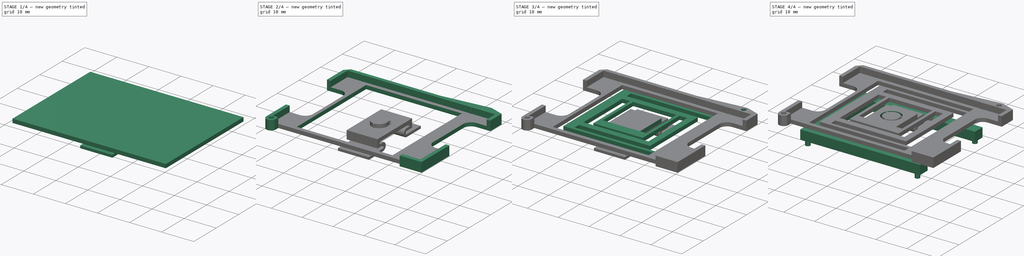
[diagram: build sequence overview — one tinted view per stage of 4, left to right]
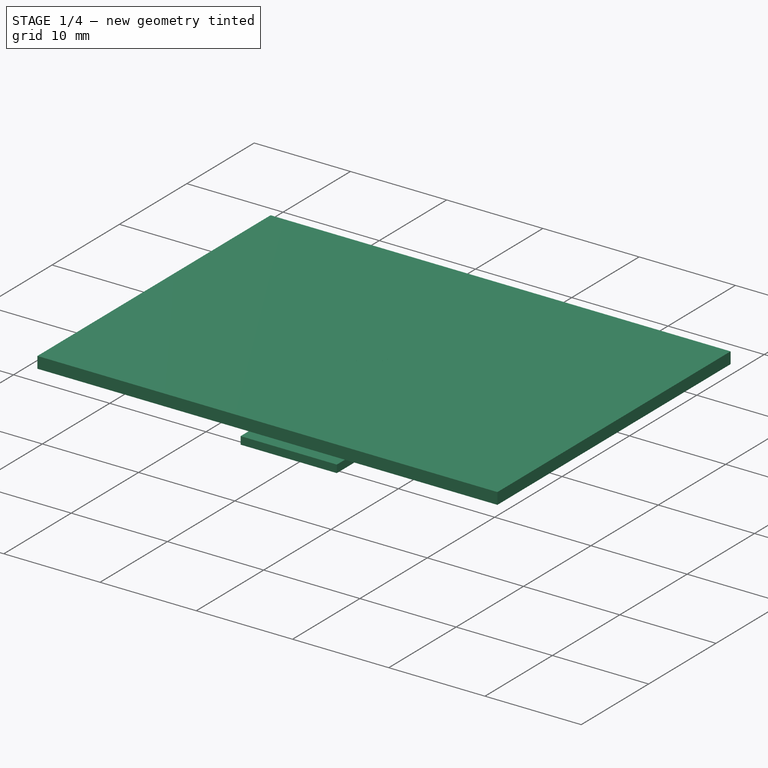
[diagram: stage 1 of 4 — iso view after this stage's code; geometry added in this stage tinted green]
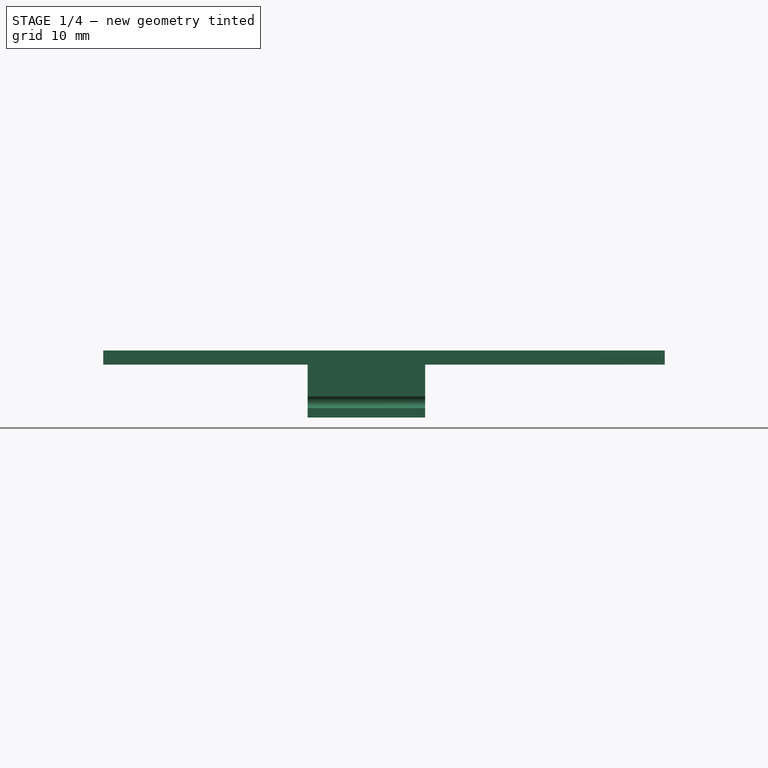
[diagram: stage 1 of 4 — front view after this stage's code; geometry added in this stage tinted green]
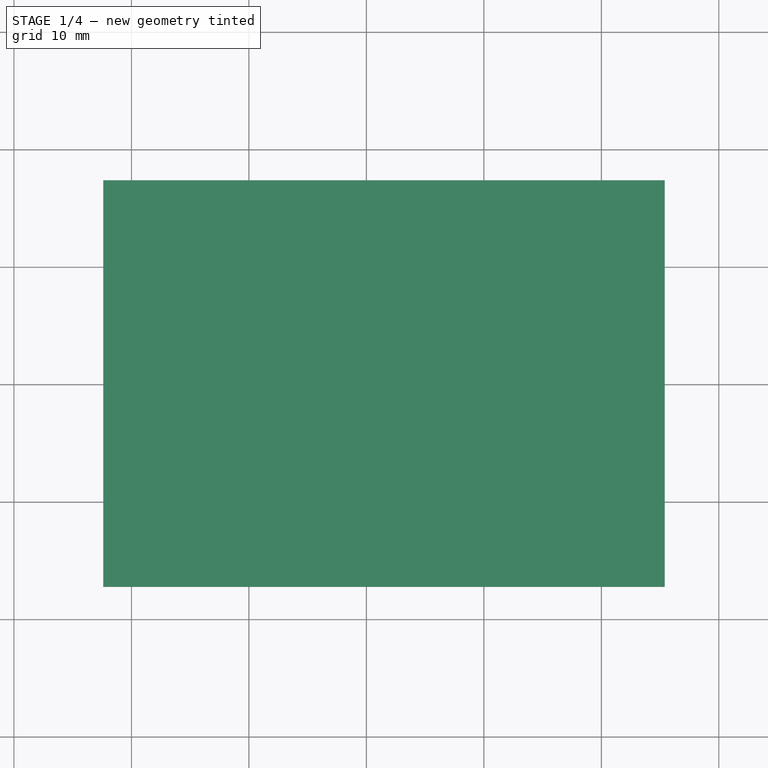
[diagram: stage 1 of 4 — top view after this stage's code; geometry added in this stage tinted green]
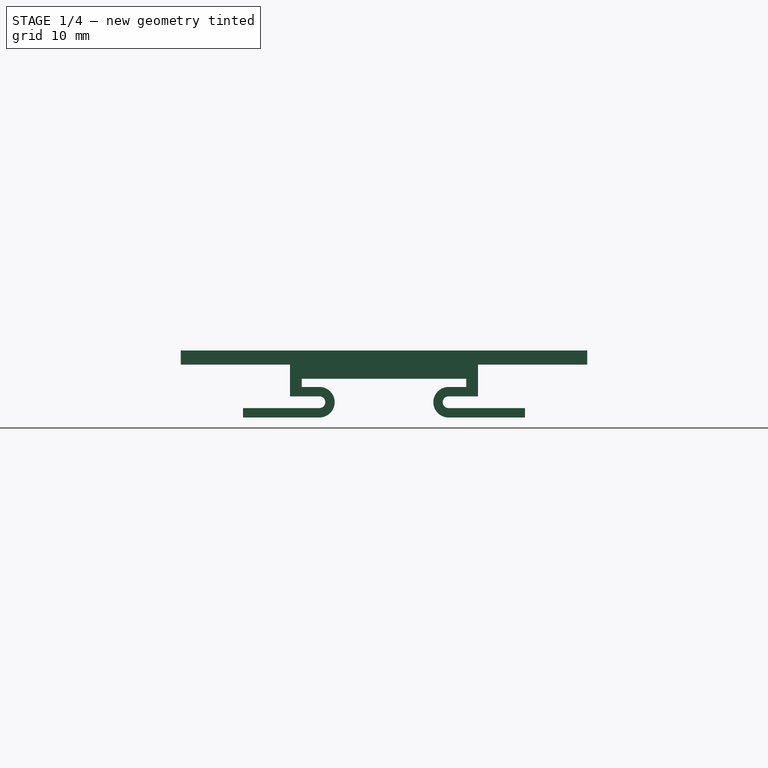
[diagram: stage 1 of 4 — right view after this stage's code; geometry added in this stage tinted green]
FCSTD DOCUMENT  (FreeCAD 0.21R33668 +26 (Git))
Label: PLASTIC-TEK1-DISPLAY-INTERFACE_v3
License: All rights reserved
LicenseURL: https://en.wikipedia.org/wiki/All_rights_reserved
objects: Sketcher::SketchObject×18, PartDesign::Pad×8, PartDesign::Plane×5, PartDesign::Pocket×5, PartDesign::Body×3, PartDesign::Mirrored×1
note: 53 computed .brp shape members not serialized (recipe doc carries the construction recipe); baked Part::Feature solids carry a one-line shape summary decoded from their .brp

FEATURE [PartDesign::Plane] DatumPlane002
  AttachmentOffset = pos=(0,0,5.5) rot=(0,0,1;0rad)
  Length = 61.7587
  MapMode = 5
  Placement = pos=(0,0,5.5) rot=(0,0,1;0rad)
  ResizeMode = 0
  Support = -> [XY_Plane001]
  Width = 60.1587
FEATURE [Sketcher::SketchObject] Sketch005
  FullyConstrained = true
  MapMode = 5
  Placement = pos=(0,0,5.5) rot=(0,0,1;0rad)
  Support = -> [DatumPlane002]
  sketch-geometry (5):
    g0: LineSegment StartX=-15.5 StartY=-16 StartZ=0 EndX=-15.5 EndY=16 EndZ=0
    g1: LineSegment StartX=-15.5 StartY=16 StartZ=0 EndX=15.5 EndY=16 EndZ=0
    g2: LineSegment StartX=15.5 StartY=16 StartZ=0 EndX=15.5 EndY=-16 EndZ=0
    g3: LineSegment StartX=15.5 StartY=-16 StartZ=0 EndX=-15.5 EndY=-16 EndZ=0
    g4: GeomPoint X=0 Y=0 Z=0
  constraints (12):
    c: Coincident(g0,g1)
    c: Coincident(g1,g2)
    c: Coincident(g2,g3)
    c: Coincident(g3,g0)
    c: Horizontal(g1)
    c: Horizontal(g3)
    c: Vertical(g0)
    c: Vertical(g2)
    c: Symmetric(g1,g0,g4)
    c: Coincident(g4,g-1)
    c: DistanceX(g1,g1) = 31
    c: DistanceY(g2,g2) = 32
FEATURE [Sketcher::SketchObject] Sketch007
  FullyConstrained = true
  MapMode = 5
  Placement = pos=(0,0,5.5) rot=(0,0,1;0rad)
  Support = -> [DatumPlane002]
  sketch-geometry (10):
    g0: LineSegment StartX=-22.4 StartY=-17.3 StartZ=0 EndX=-22.4 EndY=17.3 EndZ=0
    g1: LineSegment StartX=-22.4 StartY=17.3 StartZ=0 EndX=25.4 EndY=17.3 EndZ=0
    g2: LineSegment StartX=25.4 StartY=17.3 StartZ=0 EndX=25.4 EndY=-17.3 EndZ=0
    g3: LineSegment StartX=25.4 StartY=-17.3 StartZ=0 EndX=-22.4 EndY=-17.3 EndZ=0
    g4: GeomPoint X=1.5 Y=0 Z=0
    g5: LineSegment StartX=-20.4 StartY=-15.3 StartZ=0 EndX=-20.4 EndY=15.3 EndZ=0
    g6: LineSegment StartX=-20.4 StartY=15.3 StartZ=0 EndX=20.4 EndY=15.3 EndZ=0
    g7: LineSegment StartX=20.4 StartY=15.3 StartZ=0 EndX=20.4 EndY=-15.3 EndZ=0
    g8: LineSegment StartX=20.4 StartY=-15.3 StartZ=0 EndX=-20.4 EndY=-15.3 EndZ=0
    g9: GeomPoint X=0 Y=0 Z=0
  constraints (25):
    c: Coincident(g0,g1)
    c: Coincident(g1,g2)
    c: Coincident(g2,g3)
    c: Coincident(g3,g0)
    c: Horizontal(g1)
    c: Horizontal(g3)
    c: Vertical(g0)
    c: Vertical(g2)
    c: Symmetric(g1,g0,g4)
    c: PointOnObject(g4,g-1)
    c: DistanceY(g0,g0) = 34.6
    c: Coincident(g5,g6)
    c: Coincident(g6,g7)
    c: Coincident(g7,g8)
    c: Coincident(g8,g5)
    c: Horizontal(g6)
    c: Horizontal(g8)
    c: Vertical(g5)
    c: Vertical(g7)
    c: Symmetric(g6,g5,g9)
    c: DistanceX(g6,g6) = 40.8
    c: DistanceY(g7,g7) = 30.6
    c: Coincident(g9,g-1)
    c: DistanceX(g0,g9) = 22.4
    c: DistanceX(g9,g2) = 25.4
FEATURE [PartDesign::Pad] Pad005
  Direction = (0,0,1)
  Length = 1.2
  Length2 = 10
  Placement = pos=(0,0,5.5) rot=(0,0,1;0rad)
  Profile = -> Sketch007
  ReferenceAxis = -> Sketch007 [N_Axis]
  Type = 0
FEATURE [PartDesign::Plane] DatumPlane005
  AttachmentOffset = pos=(0,0,3) rot=(0,0,1;0rad)
  Length = 60
  MapMode = 5
  Placement = pos=(-3,7e-16,-7e-16) rot=(-0.57735,0.57735,0.57735;4.18879rad)
  ResizeMode = 0
  Support = -> [YZ_Plane002]
  Width = 60
FEATURE [Sketcher::SketchObject] Sketch030
  FullyConstrained = true
  MapMode = 5
  Placement = pos=(0,0,0) rot=(0.57735,0.57735,0.57735;2.0944rad)
  Support = -> [YZ_Plane002]
  sketch-geometry (8):
    g0: LineSegment StartX=-12 StartY=3 StartZ=0 EndX=-11 EndY=3 EndZ=0
    g1: LineSegment StartX=-11 StartY=3 StartZ=0 EndX=-11 EndY=1 EndZ=0
    g2: LineSegment StartX=-11 StartY=1 StartZ=0 EndX=-12 EndY=1 EndZ=0
    g3: LineSegment StartX=-12 StartY=1 StartZ=0 EndX=-12 EndY=3 EndZ=0
    g4: LineSegment StartX=12 StartY=3 StartZ=0 EndX=11 EndY=3 EndZ=0
    g5: LineSegment StartX=11 StartY=3 StartZ=0 EndX=11 EndY=1 EndZ=0
    g6: LineSegment StartX=11 StartY=1 StartZ=0 EndX=12 EndY=1 EndZ=0
    g7: LineSegment StartX=12 StartY=1 StartZ=0 EndX=12 EndY=3 EndZ=0
  constraints (23):
    c: Coincident(g0,g1)
    c: Coincident(g1,g2)
    c: Coincident(g2,g3)
    c: Coincident(g3,g0)
    c: Horizontal(g0)
    c: Horizontal(g2)
    c: Vertical(g1)
    c: Vertical(g3)
    c: Coincident(g4,g5)
    c: Coincident(g5,g6)
    c: Coincident(g6,g7)
    c: Coincident(g7,g4)
    c: Horizontal(g4)
    c: Horizontal(g6)
    c: Vertical(g5)
    c: Vertical(g7)
    c: Symmetric(g1,g5,g-2)
    c: Equal(g7,g3)
    c: Equal(g4,g0)
    c: DistanceY(g7,g7) = 2
    c: DistanceX(g4,g4) = 1
    c: DistanceY(g-1,g5) = 1
    c: DistanceX(g0,g4) = 24
FEATURE [Sketcher::SketchObject] Sketch032
  FullyConstrained = true
  MapMode = 5
  Placement = pos=(0,0,0) rot=(0.57735,0.57735,0.57735;2.0944rad)
  Support = -> [YZ_Plane003]
  sketch-geometry (12):
    g0: LineSegment StartX=-12 StartY=1.8 StartZ=0 EndX=-12 EndY=1 EndZ=0
    g1: LineSegment StartX=-7 StartY=4.3 StartZ=0 EndX=0 EndY=4.3 EndZ=0
    g2: LineSegment StartX=-8 StartY=5.5 StartZ=0 EndX=0 EndY=5.5 EndZ=0
    g3: LineSegment StartX=0 StartY=5.5 StartZ=0 EndX=0 EndY=4.3 EndZ=0
    g4: LineSegment StartX=-7 StartY=4.3 StartZ=0 EndX=-7 EndY=3.6 EndZ=0
    g5: ArcOfCircle CenterX=-5.5 CenterY=2.3 CenterZ=0 NormalX=0 NormalY=0 NormalZ=1 AngleXU=0 Radius=0.5 StartAngle=4.71239 EndAngle=7.85398
    g6: LineSegment StartX=-7 StartY=3.6 StartZ=0 EndX=-5.5 EndY=3.6 EndZ=0
    g7: LineSegment StartX=-5.5 StartY=1 StartZ=0 EndX=-12 EndY=1 EndZ=0
    g8: LineSegment StartX=-8 StartY=5.5 StartZ=0 EndX=-8 EndY=2.8 EndZ=0
    g9: LineSegment StartX=-8 StartY=2.8 StartZ=0 EndX=-5.5 EndY=2.8 EndZ=0
    g10: LineSegment StartX=-5.5 StartY=1.8 StartZ=0 EndX=-12 EndY=1.8 EndZ=0
    g11: ArcOfCircle CenterX=-5.5 CenterY=2.3 CenterZ=0 NormalX=0 NormalY=0 NormalZ=1 AngleXU=0 Radius=1.3 StartAngle=4.71239 EndAngle=7.85398
  constraints (33):
    c: Vertical(g0)
    c: DistanceX(g0,g-1) = 12
    c: PointOnObject(g1,g-2)
    c: Horizontal(g1)
    c: PointOnObject(g2,g-2)
    c: Horizontal(g2)
    c: Coincident(g3,g2)
    c: Coincident(g3,g1)
    c: DistanceY(g3,g3) = 1.2
    c: DistanceY(g-1,g2) = 5.5
    c: DistanceX(g2,g2) = 8
    c: Coincident(g4,g1)
    c: Vertical(g4)
    c: Coincident(g6,g4)
    c: Coincident(g7,g0)
    c: Horizontal(g7)
    c: Horizontal(g6)
    c: DistanceY(g-1,g0) = 1
    c: Coincident(g8,g2)
    c: Vertical(g8)
    c: Coincident(g9,g8)
    c: Horizontal(g10)
    c: Horizontal(g9)
    c: Tangent(g11,g7) = 1.5708
    c: Tangent(g5,g9) = 1.5708
    c: Tangent(g5,g10) = 1.5708
    c: Coincident(g0,g10)
    c: DistanceX(g8,g4) = 1
    c: DistanceY(g5,g6) = 0.8
    c: Coincident(g11,g5)
    c: Tangent(g11,g6) = 1.5708
    c: Diameter(g5) = 1
    c: DistanceX(g8,g5) = 2.5
FEATURE [PartDesign::Plane] DatumPlane006
  AttachmentOffset = pos=(0,0,-3) rot=(0,0,1;0rad)
  Length = 60
  MapMode = 5
  Placement = pos=(-3,7e-16,-7e-16) rot=(0.57735,0.57735,0.57735;2.0944rad)
  ResizeMode = 0
  Support = -> [YZ_Plane003]
  Width = 60
FEATURE [PartDesign::Pad] Pad021
  Direction = (1,-2e-16,3e-16)
  Length = 10
  Length2 = 10
  Midplane = true
  Placement = pos=(0,0,0) rot=(0.57735,0.57735,0.57735;2.0944rad)
  Profile = -> Sketch032
  ReferenceAxis = -> Sketch032 [N_Axis]
  Type = 0
FEATURE [PartDesign::Mirrored] Mirrored004
  BaseFeature = -> Pad021
  MirrorPlane = -> Sketch027 [V_Axis]
  Originals = -> [Pad021]
  Placement = pos=(0,0,0) rot=(0.57735,0.57735,0.57735;2.0944rad)
  Refine = true
FEATURE [PartDesign::Body] Body001  label="PLASTIC-TEK1-DISPLAY-INTERFACE_top_part"
  Group = -> [DatumPlane002,Sketch005,Sketch007,Pad005,Sketch008,Pad006,Sketch009,Pocket001,Pocket002,Pad,Sketch023,DatumPlane,Sketch013,Sketch020,Pad015,Pocket,Sketch034,Pocket006]
  Origin = -> Origin001
  Tip = -> Pocket006
FEATURE [PartDesign::Pad] Pad022
  BaseFeature = -> Mirrored004
  Direction = (0,0,1)
  Length = 1.2
  Length2 = 10
  Placement = pos=(0,0,0) rot=(0.57735,0.57735,0.57735;2.0944rad)
  Profile = -> Sketch026
  ReferenceAxis = -> Sketch026 [N_Axis]
  Type = 0
FEATURE [PartDesign::Body] Body003  label="PLASTIC-TEK1-DISPLAY-INTERFACE_bottom_part002"
  Group = -> [Pad021,DatumPlane006,Sketch032,Sketch025,DatumPlane004,Mirrored004,Sketch028,Sketch024,Sketch026,Sketch027,Pad022]
  Origin = -> Origin003
  Tip = -> Pad022
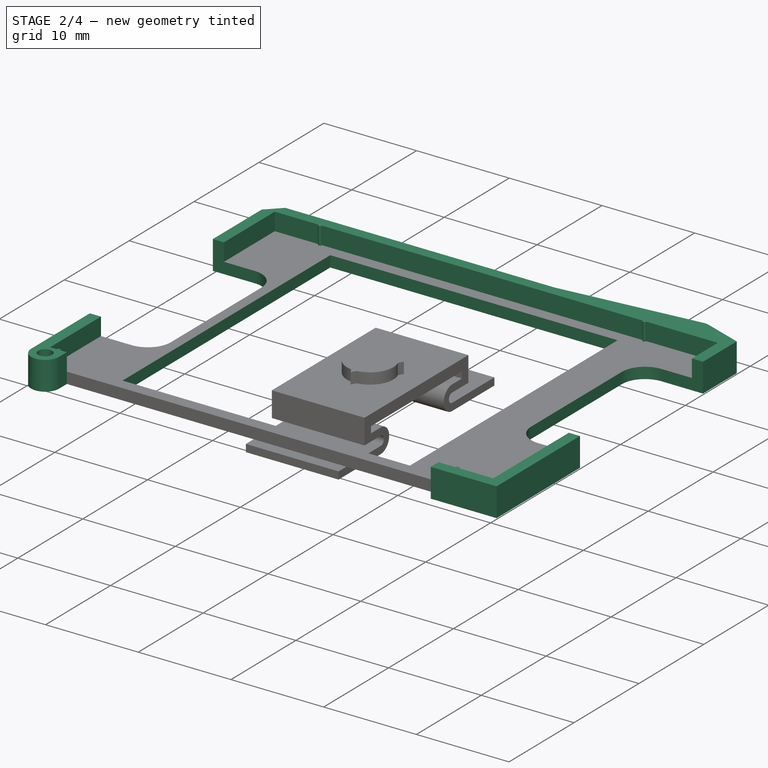
[diagram: stage 2 of 4 — iso view after this stage's code; geometry added in this stage tinted green]
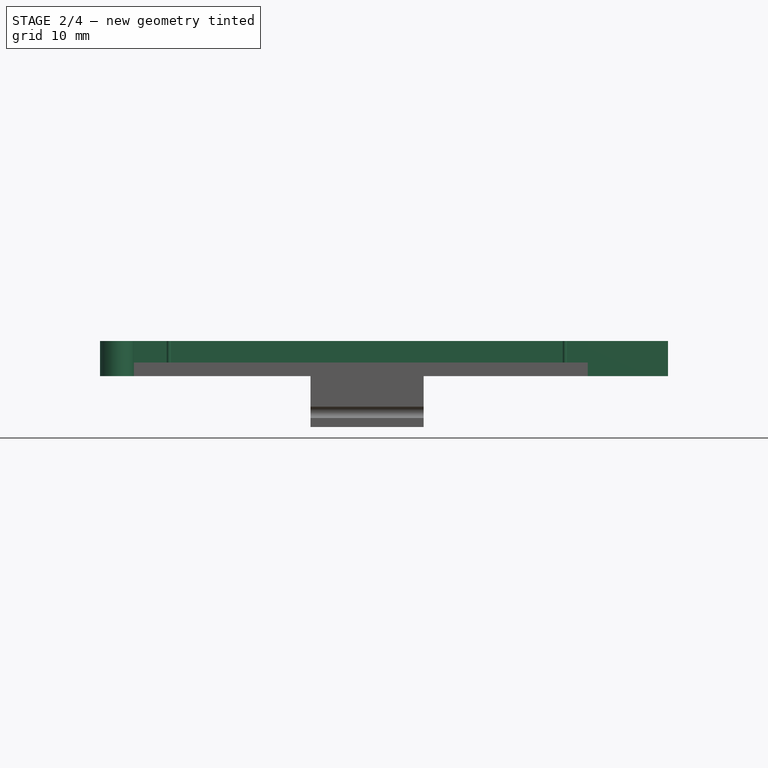
[diagram: stage 2 of 4 — front view after this stage's code; geometry added in this stage tinted green]
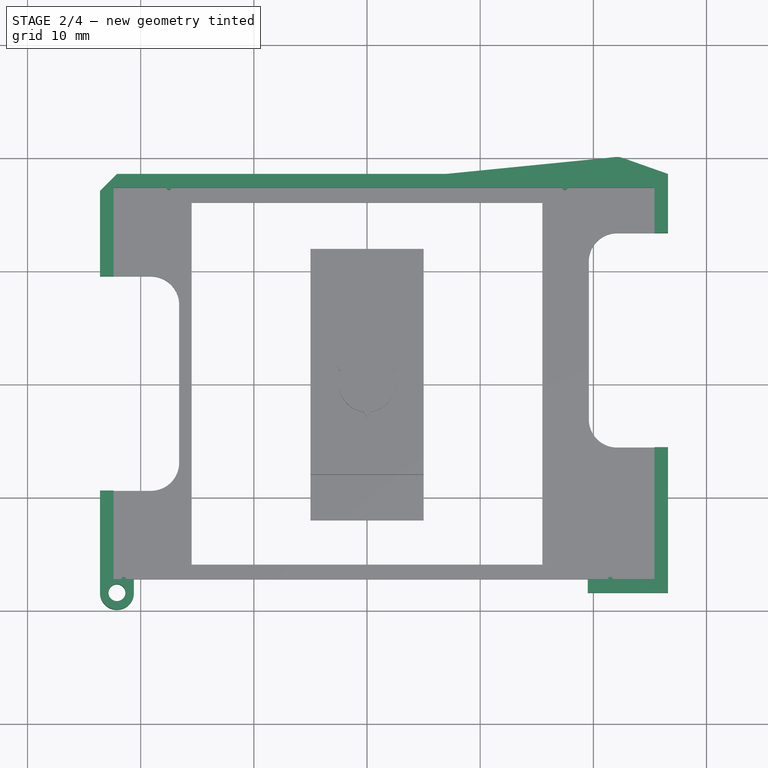
[diagram: stage 2 of 4 — top view after this stage's code; geometry added in this stage tinted green]
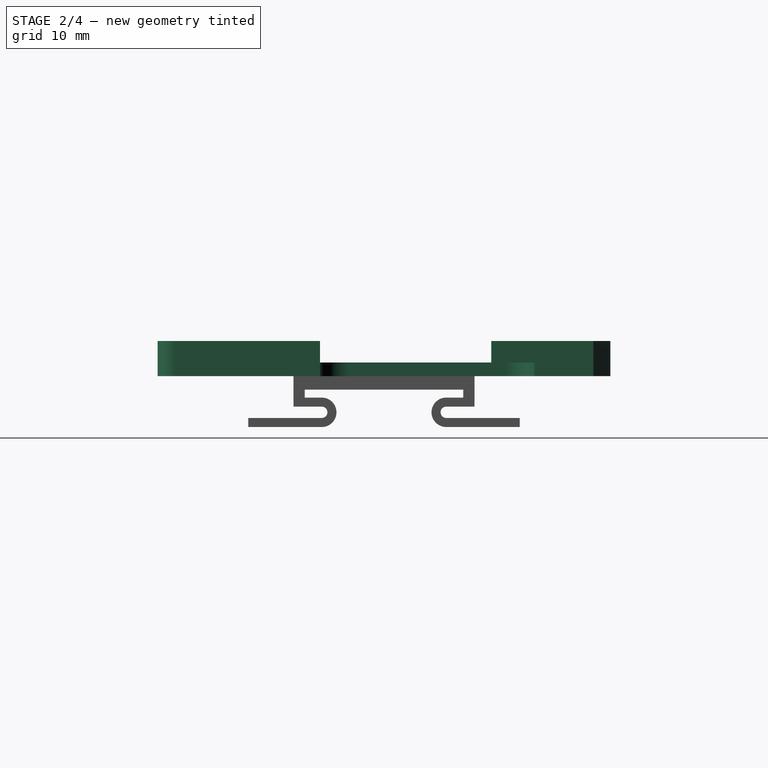
[diagram: stage 2 of 4 — right view after this stage's code; geometry added in this stage tinted green]
FEATURE [Sketcher::SketchObject] Sketch008
  FullyConstrained = true
  MapMode = 5
  Placement = pos=(0,0,5.5) rot=(0,0,1;0rad)
  Support = -> [DatumPlane002]
  sketch-geometry (29):
    g0: LineSegment StartX=-22.4 StartY=-17.3 StartZ=0 EndX=-22.4 EndY=17.3 EndZ=0
    g1: LineSegment StartX=-22.4 StartY=17.3 StartZ=0 EndX=-17.7 EndY=17.3 EndZ=0
    g2: LineSegment StartX=25.4 StartY=17.3 StartZ=0 EndX=25.4 EndY=-17.3 EndZ=0
    g3: GeomPoint X=1.5 Y=0 Z=0
    g4: LineSegment StartX=-23.6 StartY=-18.5 StartZ=0 EndX=-23.6 EndY=17 EndZ=0
    g5: LineSegment StartX=-22.1 StartY=18.5 StartZ=0 EndX=6.95 EndY=18.5 EndZ=0
    g6: LineSegment StartX=26.6 StartY=18.5 StartZ=0 EndX=26.6 EndY=-18.5 EndZ=0
    g7: GeomPoint X=1.5 Y=0 Z=0
    g8: Circle CenterX=22.1 CenterY=18.5 CenterZ=0 NormalX=0 NormalY=0 NormalZ=1 AngleXU=0 Radius=0.75
    g9: LineSegment StartX=21.9515 StartY=19.9926 StartZ=0 EndX=6.95 EndY=18.5 EndZ=0
    g10: LineSegment StartX=22.6 StartY=19.9142 StartZ=0 EndX=26.6 EndY=18.5 EndZ=0
    g11: ArcOfCircle CenterX=22.1 CenterY=18.5 CenterZ=0 NormalX=0 NormalY=0 NormalZ=1 AngleXU=0 Radius=1.5 StartAngle=1.23096 EndAngle=1.66997
    g12: LineSegment StartX=-22.4 StartY=-17.3 StartZ=0 EndX=-21.7 EndY=-17.3 EndZ=0
    g13: LineSegment StartX=-23.6 StartY=17 StartZ=0 EndX=-22.1 EndY=18.5 EndZ=0
    g14: LineSegment StartX=19.5 StartY=-17.3 StartZ=0 EndX=19.5 EndY=-18.5 EndZ=0
    g15: LineSegment StartX=19.5 StartY=-18.5 StartZ=0 EndX=26.6 EndY=-18.5 EndZ=0
    g16: LineSegment StartX=19.5 StartY=-17.3 StartZ=0 EndX=19.5 EndY=-18.5 EndZ=0
    g17: LineSegment StartX=19.5 StartY=-17.3 StartZ=0 EndX=21.3 EndY=-17.3 EndZ=0
    g18: ArcOfCircle CenterX=-17.5 CenterY=17.3 CenterZ=0 NormalX=0 NormalY=0 NormalZ=1 AngleXU=0 Radius=0.2 StartAngle=3.14159 EndAngle=6.28319
    g19: ArcOfCircle CenterX=17.5 CenterY=17.3 CenterZ=0 NormalX=0 NormalY=0 NormalZ=1 AngleXU=0 Radius=0.2 StartAngle=3.14159 EndAngle=6.28319
    g20: ArcOfCircle CenterX=21.5 CenterY=-17.3 CenterZ=0 NormalX=0 NormalY=0 NormalZ=1 AngleXU=0 Radius=0.2 StartAngle=1.4e-15 EndAngle=3.14159
    g21: ArcOfCircle CenterX=-21.5 CenterY=-17.3 CenterZ=0 NormalX=0 NormalY=0 NormalZ=1 AngleXU=0 Radius=0.2 StartAngle=4.4e-15 EndAngle=3.14159
    g22: LineSegment StartX=21.7 StartY=-17.3 StartZ=0 EndX=25.4 EndY=-17.3 EndZ=0
    g23: LineSegment StartX=-21.3 StartY=-17.3 StartZ=0 EndX=-20.6 EndY=-17.3 EndZ=0
    g24: LineSegment StartX=-17.3 StartY=17.3 StartZ=0 EndX=17.3 EndY=17.3 EndZ=0
    g25: LineSegment StartX=17.7 StartY=17.3 StartZ=0 EndX=25.4 EndY=17.3 EndZ=0
    g26: Circle CenterX=-22.1 CenterY=-18.5 CenterZ=0 NormalX=0 NormalY=0 NormalZ=1 AngleXU=0 Radius=0.75
    g27: ArcOfCircle CenterX=-22.1 CenterY=-18.5 CenterZ=0 NormalX=0 NormalY=0 NormalZ=1 AngleXU=0 Radius=1.5 StartAngle=3.14159 EndAngle=6.28319
    g28: LineSegment StartX=-20.6 StartY=-18.5 StartZ=0 EndX=-20.6 EndY=-17.3 EndZ=0
  constraints (79):
    c: Coincident(g0,g1)
    c: Coincident(g25,g2)
    c: Horizontal(g1)
    c: Vertical(g0)
    c: Vertical(g2)
    c: Symmetric(g25,g0,g3)
    c: PointOnObject(g3,g-1)
    c: DistanceX(g0,g-1) = 22.4
    c: DistanceY(g0,g0) = 34.6
    c: DistanceX(g1,g25) = 47.8
    c: Horizontal(g5)
    c: Vertical(g4)
    c: Coincident(g7,g3)
    c: DistanceX(g4,g0) = 1.2
    c: DistanceY(g4,g0) = 1.2
    c: DistanceY(g6,g6) = 37
    c: Symmetric(g6,g6,g-1)
    c: DistanceX(g-1,g8) = 22.1
    c: DistanceY(g25,g8) = 1.2
    c: Coincident(g5,g9)
    c: Coincident(g10,g6)
    c: Tangent(g11,g10) = 1.5708
    c: Tangent(g11,g9) = -1.5708
    c: Coincident(g11,g8)
    c: Coincident(g12,g0)
    c: Horizontal(g12)
    c: Coincident(g2,g22)
    c: Coincident(g4,g13)
    c: DistanceX(g4,g5) = 30.55
    c: DistanceX(g4,g6) = 50.2
    c: Coincident(g5,g13)
    c: Angle(g13,g5) = 2.35619
    c: DistanceX(g4,g5) = 1.5
    c: DistanceX(g-1,g14) = 19.5
    c: Vertical(g14)
    c: Coincident(g15,g14)
    c: Coincident(g15,g6)
    c: Coincident(g16,g14)
    c: Coincident(g16,g15)
    c: Coincident(g17,g14)
    c: Horizontal(g17)
    c: PointOnObject(g18,g1)
    c: PointOnObject(g20,g17)
    c: Equal(g21,g20)
    c: Equal(g20,g19)
    c: Equal(g19,g18)
    c: Diameter(g18) = 0.4
    c: Symmetric(g18,g19,g-2)
    c: DistanceX(g18,g19) = 35
    c: Symmetric(g21,g20,g-2)
    c: DistanceX(g21,g20) = 43
    c: Coincident(g17,g20)
    c: Coincident(g22,g20)
    c: Coincident(g12,g21)
    c: Coincident(g23,g21)
    c: Coincident(g1,g18)
    c: Coincident(g24,g18)
    c: Coincident(g24,g19)
    c: Coincident(g25,g19)
    c: Horizontal(g23)
    c: Horizontal(g21,g12)
    c: Horizontal(g22)
    c: Horizontal(g25)
    c: Horizontal(g19,g19)
    c: Horizontal(g24)
    c: Horizontal(g19,g19)
    c: Horizontal(g17,g20)
    c: Coincident(g27,g26)
    c: Equal(g26,g8)
    c: Equal(g27,g11)
    c: Diameter(g27) = 3
    c: Diameter(g26) = 1.5
    c: Tangent(g27,g4) = 1.5708
    c: Vertical(g28)
    c: Tangent(g27,g28) = -1.5708
    c: Coincident(g23,g28)
    c: Horizontal(g21,g21)
    c: Horizontal(g15)
    c: DistanceY(g23,g4) = 34.3
FEATURE [PartDesign::Pad] Pad006
  BaseFeature = -> Pad005
  Direction = (0,0,1)
  Length = 3.1
  Length2 = 10
  Placement = pos=(0,0,5.5) rot=(0,0,1;0rad)
  Profile = -> Sketch008
  ReferenceAxis = -> Sketch008 [N_Axis]
  Refine = true
  Type = 0
FEATURE [Sketcher::SketchObject] Sketch009
  FullyConstrained = true
  MapMode = 5
  Placement = pos=(0,0,5.5) rot=(0,0,1;0rad)
  Support = -> [DatumPlane002]
  sketch-geometry (13):
    g0: LineSegment StartX=19.6 StartY=-3.15 StartZ=0 EndX=19.6 EndY=10.8 EndZ=0
    g1: LineSegment StartX=22.1 StartY=13.3 StartZ=0 EndX=26.6 EndY=13.3 EndZ=0
    g2: LineSegment StartX=26.6 StartY=13.3 StartZ=0 EndX=26.6 EndY=-5.65 EndZ=0
    g3: LineSegment StartX=26.6 StartY=-5.65 StartZ=0 EndX=22.1 EndY=-5.65 EndZ=0
    g4: GeomPoint X=26.6 Y=17.3 Z=0
    g5: ArcOfCircle CenterX=22.1 CenterY=-3.15 CenterZ=0 NormalX=0 NormalY=0 NormalZ=1 AngleXU=0 Radius=2.5 StartAngle=3.14159 EndAngle=4.71239
    g6: ArcOfCircle CenterX=22.1 CenterY=10.8 CenterZ=0 NormalX=0 NormalY=0 NormalZ=1 AngleXU=0 Radius=2.5 StartAngle=1.5708 EndAngle=3.14159
    g7: LineSegment StartX=-23.6 StartY=9.475 StartZ=0 EndX=-19.1 EndY=9.475 EndZ=0
    g8: LineSegment StartX=-16.6 StartY=6.975 StartZ=0 EndX=-16.6 EndY=-6.975 EndZ=0
    g9: LineSegment StartX=-19.1 StartY=-9.475 StartZ=0 EndX=-23.6 EndY=-9.475 EndZ=0
    g10: LineSegment StartX=-23.6 StartY=-9.475 StartZ=0 EndX=-23.6 EndY=9.475 EndZ=0
    g11: ArcOfCircle CenterX=-19.1 CenterY=6.975 CenterZ=0 NormalX=0 NormalY=0 NormalZ=1 AngleXU=0 Radius=2.5 StartAngle=0 EndAngle=1.5708
    g12: ArcOfCircle CenterX=-19.1 CenterY=-6.975 CenterZ=0 NormalX=0 NormalY=0 NormalZ=1 AngleXU=0 Radius=2.5 StartAngle=4.71239 EndAngle=6.28319
  constraints (33):
    c: Coincident(g1,g2)
    c: Coincident(g2,g3)
    c: Horizontal(g1)
    c: Horizontal(g3)
    c: Vertical(g0)
    c: Vertical(g2)
    c: DistanceX(g-1,g4) = 26.6
    c: DistanceY(g-1,g4) = 17.3
    c: DistanceY(g1,g4) = 4
    c: Vertical(g1,g4)
    c: Tangent(g0,g5) = 1.5708
    c: Tangent(g3,g5) = 1.5708
    c: Tangent(g0,g6) = 1.5708
    c: Tangent(g1,g6) = 1.5708
    c: DistanceY(g3,g-1) = 5.65
    c: Equal(g5,g6)
    c: DistanceX(g0,g2) = 7
    c: Diameter(g5) = 5
    c: Coincident(g9,g10)
    c: Coincident(g10,g7)
    c: Horizontal(g7)
    c: Horizontal(g9)
    c: Vertical(g8)
    c: DistanceX(g9,g-1) = 23.6
    c: Symmetric(g9,g7,g-1)
    c: Tangent(g7,g11) = 1.5708
    c: Tangent(g8,g11) = 1.5708
    c: Tangent(g8,g12) = 1.5708
    c: Tangent(g9,g12) = 1.5708
    c: Equal(g11,g12)
    c: Diameter(g11) = 5
    c: DistanceX(g7,g8) = 7
    c: DistanceY(g10,g10) = 18.95
FEATURE [PartDesign::Pocket] Pocket001
  BaseFeature = -> Pad006
  Direction = (0,0,-1)
  Length = 5
  Length2 = 5
  Placement = pos=(0,0,5.5) rot=(0,0,1;0rad)
  Profile = -> Sketch009
  ReferenceAxis = -> Sketch009 [N_Axis]
  Reversed = true
  Type = 1
FEATURE [PartDesign::Pocket] Pocket002
  BaseFeature = -> Pocket001
  Direction = (0,0,-1)
  Length = 5
  Length2 = 5
  Placement = pos=(0,0,5.5) rot=(0,0,1;0rad)
  Profile = -> Sketch005
  ReferenceAxis = -> Sketch005 [N_Axis]
  Reversed = true
  Type = 0
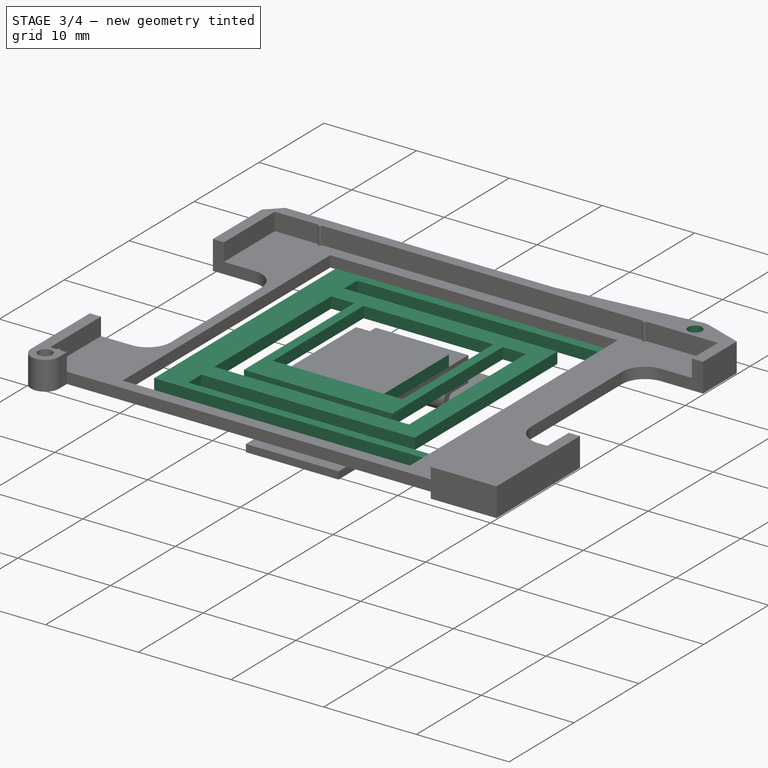
[diagram: stage 3 of 4 — iso view after this stage's code; geometry added in this stage tinted green]
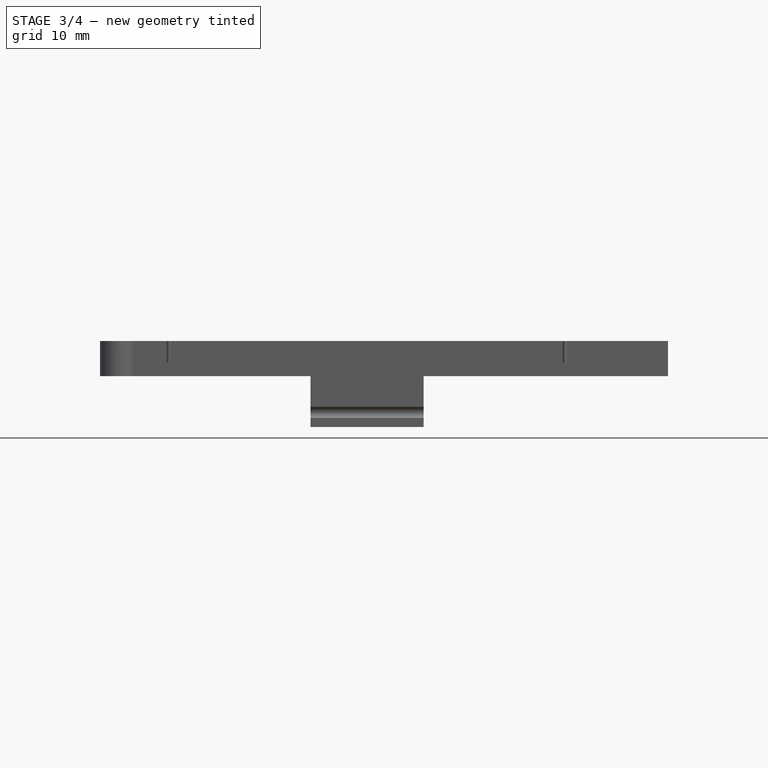
[diagram: stage 3 of 4 — front view after this stage's code; geometry added in this stage tinted green]
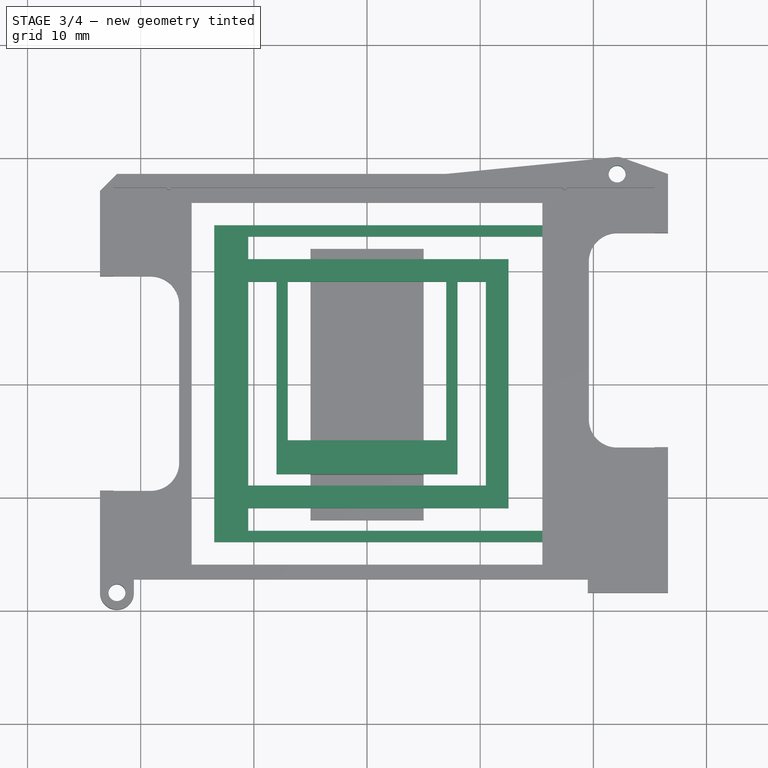
[diagram: stage 3 of 4 — top view after this stage's code; geometry added in this stage tinted green]
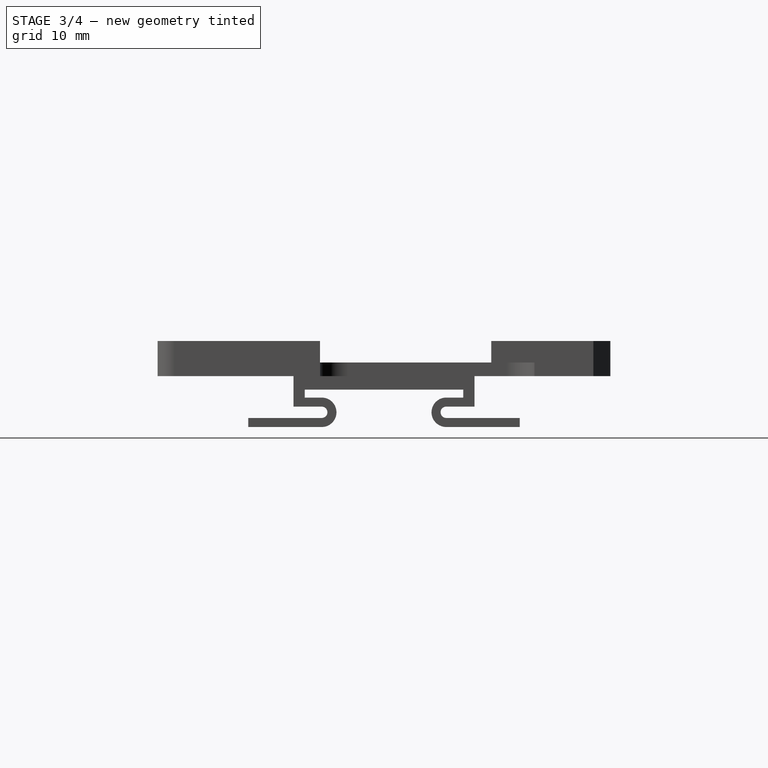
[diagram: stage 3 of 4 — right view after this stage's code; geometry added in this stage tinted green]
FEATURE [PartDesign::Plane] DatumPlane
  AttachmentOffset = pos=(0,0,8.1) rot=(0,0,1;0rad)
  Length = 61.7587
  MapMode = 5
  Placement = pos=(0,0,8.1) rot=(0,0,1;0rad)
  ResizeMode = 0
  Support = -> [XY_Plane001]
  Width = 60.1587
FEATURE [Sketcher::SketchObject] Sketch013
  FullyConstrained = true
  MapMode = 5
  Placement = pos=(0,0,8.1) rot=(0,0,1;0rad)
  Support = -> [DatumPlane]
  sketch-geometry (4):
    g0: Circle CenterX=22.1 CenterY=18.5 CenterZ=0 NormalX=0 NormalY=0 NormalZ=1 AngleXU=0 Radius=0.75
    g1: Circle CenterX=-22.1 CenterY=-18.5 CenterZ=0 NormalX=0 NormalY=0 NormalZ=1 AngleXU=0 Radius=0.75
    g2: LineSegment StartX=-22.1 StartY=-18.5 StartZ=0 EndX=-22.1 EndY=0 EndZ=0
    g3: LineSegment StartX=22.1 StartY=18.5 StartZ=0 EndX=22.1 EndY=0 EndZ=0
  constraints (12):
    c: Diameter(g0) = 1.5
    c: Equal(g1,g0)
    c: Coincident(g2,g1)
    c: PointOnObject(g2,g-1)
    c: Vertical(g2)
    c: Coincident(g3,g0)
    c: PointOnObject(g3,g-1)
    c: Vertical(g3)
    c: Equal(g2,g3)
    c: DistanceY(g3,g3) = 18.5
    c: DistanceX(g-1,g3) = 22.1
    c: DistanceX(g2,g-1) = 22.1
FEATURE [Sketcher::SketchObject] Sketch020
  FullyConstrained = true
  MapMode = 5
  Placement = pos=(0,0,5.5) rot=(0,0,1;0rad)
  Support = -> [DatumPlane002]
  sketch-geometry (12):
    g0: LineSegment StartX=-5 StartY=-5 StartZ=0 EndX=-5 EndY=5 EndZ=0
    g1: LineSegment StartX=-5 StartY=5 StartZ=0 EndX=5 EndY=5 EndZ=0
    g2: LineSegment StartX=5 StartY=5 StartZ=0 EndX=5 EndY=-5 EndZ=0
    g3: LineSegment StartX=7 StartY=-5 StartZ=0 EndX=5 EndY=-5 EndZ=0
    g4: LineSegment StartX=-7 StartY=-5 StartZ=0 EndX=-5 EndY=-5 EndZ=0
    g5: LineSegment StartX=-8 StartY=10 StartZ=0 EndX=-7 EndY=10 EndZ=0
    g6: LineSegment StartX=-7 StartY=10 StartZ=0 EndX=-7 EndY=-5 EndZ=0
    g7: LineSegment StartX=-8 StartY=-8 StartZ=0 EndX=-8 EndY=10 EndZ=0
    g8: LineSegment StartX=8 StartY=10 StartZ=0 EndX=7 EndY=10 EndZ=0
    g9: LineSegment StartX=7 StartY=10 StartZ=0 EndX=7 EndY=-5 EndZ=0
    g10: LineSegment StartX=8 StartY=-8 StartZ=0 EndX=8 EndY=10 EndZ=0
    g11: LineSegment StartX=-8 StartY=-8 StartZ=0 EndX=8 EndY=-8 EndZ=0
  constraints (33):
    c: Coincident(g0,g1)
    c: Coincident(g1,g2)
    c: Vertical(g0)
    c: Horizontal(g3)
    c: Horizontal(g4)
    c: Coincident(g5,g6)
    c: Coincident(g7,g5)
    c: Horizontal(g5)
    c: Vertical(g6)
    c: Vertical(g7)
    c: Coincident(g8,g9)
    c: Coincident(g10,g8)
    c: Horizontal(g8)
    c: Vertical(g9)
    c: Vertical(g10)
    c: Equal(g5,g8)
    c: DistanceX(g8,g8) = 1
    c: Coincident(g3,g9)
    c: Coincident(g3,g2)
    c: Coincident(g4,g6)
    c: Coincident(g4,g0)
    c: Symmetric(g1,g0,g-2)
    c: Symmetric(g5,g8,g-2)
    c: Coincident(g11,g7)
    c: Coincident(g11,g10)
    c: Horizontal(g11)
    c: DistanceX(g1,g1) = 10
    c: DistanceY(g10,g3) = 3
    c: Horizontal(g2,g0)
    c: DistanceY(g2,g2) = 10
    c: Symmetric(g2,g1,g-1)
    c: DistanceX(g3,g3) = 2
    c: DistanceY(g10,g10) = 18
FEATURE [Sketcher::SketchObject] Sketch021
  FullyConstrained = false
  MapMode = 5
  Placement = pos=(0,0,0) rot=(0.57735,0.57735,0.57735;2.0944rad)
  Support = -> [YZ_Plane002]
  sketch-geometry (37):
    g0: LineSegment StartX=0 StartY=5.5 StartZ=0 EndX=-8 EndY=5.5 EndZ=0
    g1: LineSegment StartX=-8 StartY=5.5 StartZ=0 EndX=-8 EndY=4.3 EndZ=0
    g2: LineSegment StartX=-8 StartY=4.3 StartZ=0 EndX=-7 EndY=4.3 EndZ=0
    g3: LineSegment StartX=0 StartY=4.3 StartZ=0 EndX=0 EndY=5.5 EndZ=0
    g4: ArcOfCircle CenterX=-7.5 CenterY=1.3 CenterZ=0 NormalX=0 NormalY=0 NormalZ=1 AngleXU=0 Radius=0.5 StartAngle=3.14159 EndAngle=6.28319
    g5: LineSegment StartX=-7 StartY=1.3 StartZ=0 EndX=-7 EndY=4.3 EndZ=0
    g6: ArcOfCircle CenterX=-7.5 CenterY=1.3 CenterZ=0 NormalX=0 NormalY=0 NormalZ=1 AngleXU=0 Radius=1.5 StartAngle=3.14159 EndAngle=6.28319
    g7: LineSegment StartX=-6 StartY=1.3 StartZ=0 EndX=-6 EndY=4.3 EndZ=0
    g8: LineSegment StartX=-15 StartY=0 StartZ=0 EndX=-10 EndY=0 EndZ=0
    g9: LineSegment StartX=-10 StartY=0 StartZ=0 EndX=-10 EndY=1.6 EndZ=0
    g10: LineSegment StartX=-15 StartY=2.8 StartZ=0 EndX=-15 EndY=0 EndZ=0
    g11: LineSegment StartX=-8 StartY=2.8 StartZ=0 EndX=-8 EndY=1.3 EndZ=0
    g12: LineSegment StartX=-10 StartY=1.6 StartZ=0 EndX=-9 EndY=1.6 EndZ=0
    g13: LineSegment StartX=-9 StartY=1.6 StartZ=0 EndX=-9 EndY=1.3 EndZ=0
    g14: GeomPoint X=-12.5 Y=0 Z=0
    g15: LineSegment StartX=-5.65359 StartY=4.3 StartZ=0 EndX=0 EndY=4.3 EndZ=0
    g16: LineSegment StartX=-15 StartY=2.8 StartZ=0 EndX=-10 EndY=2.8 EndZ=0
    g17: LineSegment StartX=-10 StartY=1.6 StartZ=0 EndX=-10 EndY=2.8 EndZ=0
    g18: LineSegment StartX=-10 StartY=2.8 StartZ=0 EndX=-8 EndY=2.8 EndZ=0
    g19: LineSegment StartX=-8 StartY=2.8 StartZ=0 EndX=-7.43301 EndY=1.81795 EndZ=0
    g20: LineSegment StartX=-7.43301 StartY=1.81795 StartZ=0 EndX=-6 EndY=4.3 EndZ=0
    g21: LineSegment StartX=-7 StartY=4.3 StartZ=0 EndX=-6 EndY=4.3 EndZ=0
    g22: LineSegment StartX=-8 StartY=2.2 StartZ=0 EndX=-7.43301 EndY=1.21795 EndZ=0
    g23: LineSegment StartX=-7.43301 StartY=1.21795 StartZ=0 EndX=-5.65359 EndY=4.3 EndZ=0
    g24: LineSegment StartX=-10 StartY=1.6 StartZ=0 EndX=-8 EndY=2.2 EndZ=0
    g25: LineSegment StartX=-7.98668 StartY=2.77692 StartZ=0 EndX=-8.24649 EndY=2.62692 EndZ=0
    g26: LineSegment StartX=-6.62813 StartY=3.21206 StartZ=0 EndX=-6.36832 EndY=3.06206 EndZ=0
    g27: LineSegment StartX=-5.65359 StartY=4.3 StartZ=0 EndX=-6 EndY=4.3 EndZ=0
    g28: ArcOfCircle CenterX=-4 CenterY=3.2 CenterZ=0 NormalX=0 NormalY=0 NormalZ=1 AngleXU=0 Radius=0.4 StartAngle=4.71239 EndAngle=7.85398
    g29: LineSegment StartX=-10 StartY=2.8 StartZ=0 EndX=-4 EndY=2.8 EndZ=0
    g30: LineSegment StartX=-4 StartY=3.6 StartZ=0 EndX=-7 EndY=3.6 EndZ=0
    g31: LineSegment StartX=-7 StartY=3.6 StartZ=0 EndX=-7 EndY=4.3 EndZ=0
    g32: LineSegment StartX=-4 StartY=4.1 StartZ=0 EndX=-6 EndY=4.1 EndZ=0
    g33: LineSegment StartX=-6 StartY=4.1 StartZ=0 EndX=-6 EndY=4.3 EndZ=0
    g34: ArcOfCircle CenterX=-4 CenterY=3.2 CenterZ=0 NormalX=0 NormalY=0 NormalZ=1 AngleXU=0 Radius=0.9 StartAngle=4.71239 EndAngle=7.85398
    g35: LineSegment StartX=-10 StartY=0 StartZ=0 EndX=-7 EndY=2.3 EndZ=0
    g36: LineSegment StartX=-7 StartY=2.3 StartZ=0 EndX=-4 EndY=2.3 EndZ=0
  constraints (98):
    c: Coincident(g0,g1)
    c: Coincident(g1,g2)
    c: Coincident(g15,g3)
    c: Coincident(g3,g0)
    c: Horizontal(g0)
    c: Horizontal(g2)
    c: Vertical(g1)
    c: Vertical(g3)
    c: PointOnObject(g0,g-2)
    c: Vertical(g5)
    c: Coincident(g6,g4)
    c: Vertical(g7)
    c: Coincident(g8,g9)
    c: Coincident(g10,g8)
    c: Horizontal(g8)
    c: Vertical(g9)
    c: Vertical(g10)
    c: PointOnObject(g8,g-1)
    c: Horizontal(g12)
    c: Coincident(g13,g12)
    c: Vertical(g11)
    c: Vertical(g13)
    c: Symmetric(g8,g8,g14)
    c: DistanceX(g14,g-1) = 12.5
    c: DistanceY(g-1,g0) = 5.5
    c: DistanceY(g1,g1) = 1.2
    c: Tangent(g4,g5) = -1.5708
    c: Tangent(g6,g7) = -1.5708
    c: Tangent(g6,g13) = -1.5708
    c: Tangent(g4,g11) = -1.5708
    c: Coincident(g9,g12)
    c: Coincident(g2,g5)
    c: Coincident(g16,g10)
    c: Horizontal(g16)
    c: DistanceY(g12,g11) = 1.2
    c: Diameter(g6) = 3
    c: Diameter(g4) = 1
    c: DistanceX(g0,g0) = 8
    c: DistanceY(g10,g10) = 2.8
    c: DistanceX(g12,g12) = 1
    c: DistanceX(g8,g8) = 5
    c: DistanceY(g11,g11) = 1.5
    c: Horizontal(g15)
    c: Horizontal(g7,g2)
    c: Coincident(g17,g9)
    c: Vertical(g17)
    c: Coincident(g16,g17)
    c: Coincident(g18,g16)
    c: Coincident(g18,g11)
    c: Horizontal(g18)
    c: Coincident(g19,g18)
    c: Coincident(g20,g19)
    c: Coincident(g20,g7)
    c: Coincident(g21,g2)
    c: Coincident(g21,g7)
    c: PointOnObject(g22,g11)
    c: Coincident(g23,g22)
    c: Coincident(g15,g23)
    c: Horizontal(g15,g20)
    c: Parallel(g20,g23)
    c: Parallel(g19,g22)
    c: Coincident(g24,g17)
    c: Coincident(g24,g22)
    c: PointOnObject(g25,g19)
    c: PointOnObject(g25,g22)
    c: PointOnObject(g26,g20)
    c: PointOnObject(g26,g23)
    c: Perpendicular(g20,g26)
    c: Perpendicular(g19,g25)
    c: Equal(g26,g25)
    c: Distance(g26) = 0.3
    c: Angle(g18,g19) = 2.0944
    c: Angle(g23,g15) = 2.0944
    c: Coincident(g27,g15)
    c: Coincident(g27,g7)
    c: Coincident(g29,g16)
    c: Horizontal(g29)
    c: PointOnObject(g30,g5)
    c: Horizontal(g30)
    c: Coincident(g31,g30)
    c: Coincident(g31,g2)
    c: PointOnObject(g32,g7)
    c: Horizontal(g32)
    c: Coincident(g33,g32)
    c: Coincident(g33,g27)
    c: Tangent(g28,g29) = -1.5708
    c: Tangent(g28,g30) = -1.5708
    c: Tangent(g32,g34) = -1.5708
    c: Diameter(g28) = 0.8
    c: Diameter(g34) = 1.8
    c: Coincident(g34,g28)
    c: Coincident(g35,g8)
    c: Horizontal(g36)
    c: Coincident(g35,g36)
    c: Tangent(g34,g36) = -1.5708
    c: DistanceX(g30,g30) = 3
    c: DistanceX(g36,g36) = 3
    c: DistanceY(g-1,g3) = 4.3
FEATURE [Sketcher::SketchObject] Sketch
  FullyConstrained = true
  MapMode = 5
  Support = -> [XY_Plane002]
  sketch-geometry (4):
    g0: Circle CenterX=-17.835 CenterY=13.34 CenterZ=0 NormalX=0 NormalY=0 NormalZ=1 AngleXU=0 Radius=0.75
    g1: Circle CenterX=-17.835 CenterY=-13.34 CenterZ=0 NormalX=0 NormalY=0 NormalZ=1 AngleXU=0 Radius=0.75
    g2: Circle CenterX=17.835 CenterY=-13.34 CenterZ=0 NormalX=0 NormalY=0 NormalZ=1 AngleXU=0 Radius=0.75
    g3: Circle CenterX=17.835 CenterY=13.34 CenterZ=0 NormalX=0 NormalY=0 NormalZ=1 AngleXU=0 Radius=0.75
  constraints (10):
    c: Symmetric(g0,g1,g-1)
    c: Equal(g2,g1)
    c: Diameter(g0) = 1.5
    c: DistanceY(g1,g0) = 26.68
    c: DistanceX(g1,g2) = 35.67
    c: Symmetric(g1,g2,g-2)
    c: Equal(g0,g1)
    c: Horizontal(g3,g0)
    c: Vertical(g3,g2)
    c: Equal(g3,g0)
FEATURE [Sketcher::SketchObject] Sketch023
  FullyConstrained = true
  MapMode = 5
  Placement = pos=(0,0,5.5) rot=(0,0,1;0rad)
  Support = -> [DatumPlane002]
  sketch-geometry (24):
    g0: LineSegment StartX=-13.5 StartY=-14 StartZ=0 EndX=-13.5 EndY=14 EndZ=0
    g1: LineSegment StartX=-13.5 StartY=14 StartZ=0 EndX=-10.5 EndY=14 EndZ=0
    g2: LineSegment StartX=-10.5 StartY=-14 StartZ=0 EndX=-13.5 EndY=-14 EndZ=0
    g3: GeomPoint X=-12 Y=0 Z=0
    g4: LineSegment StartX=-10.5 StartY=-14 StartZ=0 EndX=15.5 EndY=-14 EndZ=0
    g5: LineSegment StartX=15.5 StartY=-14 StartZ=0 EndX=15.5 EndY=-13 EndZ=0
    g6: LineSegment StartX=15.5 StartY=-13 StartZ=0 EndX=-10.5 EndY=-13 EndZ=0
    g7: LineSegment StartX=-10.5 StartY=13 StartZ=0 EndX=15.5 EndY=13 EndZ=0
    g8: LineSegment StartX=15.5 StartY=13 StartZ=0 EndX=15.5 EndY=14 EndZ=0
    g9: LineSegment StartX=15.5 StartY=14 StartZ=0 EndX=-10.5 EndY=14 EndZ=0
    g10: LineSegment StartX=-10.5 StartY=-11 StartZ=0 EndX=12.5 EndY=-11 EndZ=0
    g11: LineSegment StartX=12.5 StartY=-11 StartZ=0 EndX=12.5 EndY=11 EndZ=0
    g12: LineSegment StartX=12.5 StartY=11 StartZ=0 EndX=-10.5 EndY=11 EndZ=0
    g13: LineSegment StartX=-10.5 StartY=9 StartZ=0 EndX=-10.5 EndY=-9 EndZ=0
    g14: LineSegment StartX=-10.5 StartY=-9 StartZ=0 EndX=10.5 EndY=-9 EndZ=0
    g15: LineSegment StartX=10.5 StartY=-9 StartZ=0 EndX=10.5 EndY=9 EndZ=0
    g16: LineSegment StartX=10.5 StartY=9 StartZ=0 EndX=-10.5 EndY=9 EndZ=0
    g17: LineSegment StartX=-15.5 StartY=-17.5 StartZ=0 EndX=-15.5 EndY=17.5 EndZ=0
    g18: LineSegment StartX=-15.5 StartY=17.5 StartZ=0 EndX=15.5 EndY=17.5 EndZ=0
    g19: LineSegment StartX=15.5 StartY=17.5 StartZ=0 EndX=15.5 EndY=-17.5 EndZ=0
    g20: LineSegment StartX=15.5 StartY=-17.5 StartZ=0 EndX=-15.5 EndY=-17.5 EndZ=0
    g21: GeomPoint X=0 Y=0 Z=0
    g22: LineSegment StartX=-10.5 StartY=-11 StartZ=0 EndX=-10.5 EndY=-13 EndZ=0
    g23: LineSegment StartX=-10.5 StartY=13 StartZ=0 EndX=-10.5 EndY=11 EndZ=0
  constraints (65):
    c: Coincident(g0,g1)
    c: Coincident(g2,g0)
    c: Horizontal(g1)
    c: Horizontal(g2)
    c: Vertical(g0)
    c: Symmetric(g1,g0,g3)
    c: PointOnObject(g3,g-1)
    c: Coincident(g4,g5)
    c: Coincident(g5,g6)
    c: Horizontal(g4)
    c: Horizontal(g6)
    c: Vertical(g5)
    c: Coincident(g7,g8)
    c: Coincident(g8,g9)
    c: Horizontal(g7)
    c: Horizontal(g9)
    c: Vertical(g8)
    c: Coincident(g10,g11)
    c: Coincident(g11,g12)
    c: Horizontal(g10)
    c: Horizontal(g12)
    c: Vertical(g13)
    c: Coincident(g14,g15)
    c: Coincident(g15,g16)
    c: Horizontal(g14)
    c: Horizontal(g16)
    c: DistanceX(g1,g1) = 3
    c: Coincident(g17,g18)
    c: Coincident(g18,g19)
    c: Coincident(g19,g20)
    c: Coincident(g20,g17)
    c: Horizontal(g18)
    c: Horizontal(g20)
    c: Vertical(g17)
    c: Vertical(g19)
    c: Symmetric(g18,g17,g21)
    c: Coincident(g21,g-1)
    c: DistanceY(g17,g17) = 35
    c: DistanceX(g18,g18) = 31
    c: PointOnObject(g8,g19)
    c: PointOnObject(g4,g19)
    c: Equal(g5,g8)
    c: Coincident(g22,g10)
    c: Coincident(g23,g7)
    c: Symmetric(g15,g14,g-1)
    c: Symmetric(g10,g11,g-1)
    c: Coincident(g13,g16)
    c: Coincident(g13,g14)
    c: DistanceY(g8,g8) = 1
    c: Coincident(g4,g2)
    c: Coincident(g9,g1)
    c: Vertical(g10,g13)
    c: Coincident(g12,g23)
    c: Vertical(g23)
    c: Vertical(g13,g12)
    c: Vertical(g7,g1)
    c: Vertical(g22)
    c: Coincident(g22,g6)
    c: Vertical(g6,g2)
    c: DistanceY(g13,g13) = 18
    c: DistanceY(g13,g12) = 2
    c: DistanceX(g15,g11) = 2
    c: DistanceX(g16,g16) = 21
    c: DistanceX(g0,g4) = 29
    c: DistanceY(g11,g7) = 2
FEATURE [PartDesign::Pad] Pad
  BaseFeature = -> Pocket002
  Direction = (0,0,1)
  Length = 1.2
  Length2 = 10
  Placement = pos=(0,0,5.5) rot=(0,0,1;0rad)
  Profile = -> Sketch023
  ReferenceAxis = -> Sketch023 [N_Axis]
  Refine = true
  Type = 0
FEATURE [PartDesign::Pad] Pad015
  BaseFeature = -> Pad
  Direction = (0,0,1)
  Length = 1.2
  Length2 = 10
  Placement = pos=(0,0,5.5) rot=(0,0,1;0rad)
  Profile = -> Sketch020
  ReferenceAxis = -> Sketch020 [N_Axis]
  Refine = true
  Type = 0
FEATURE [PartDesign::Pocket] Pocket
  BaseFeature = -> Pad015
  Direction = (0,0,-1)
  Length = 2
  Length2 = 5
  Midplane = true
  Placement = pos=(0,0,5.5) rot=(0,0,1;0rad)
  Profile = -> Sketch013
  ReferenceAxis = -> Sketch013 [N_Axis]
  Type = 1
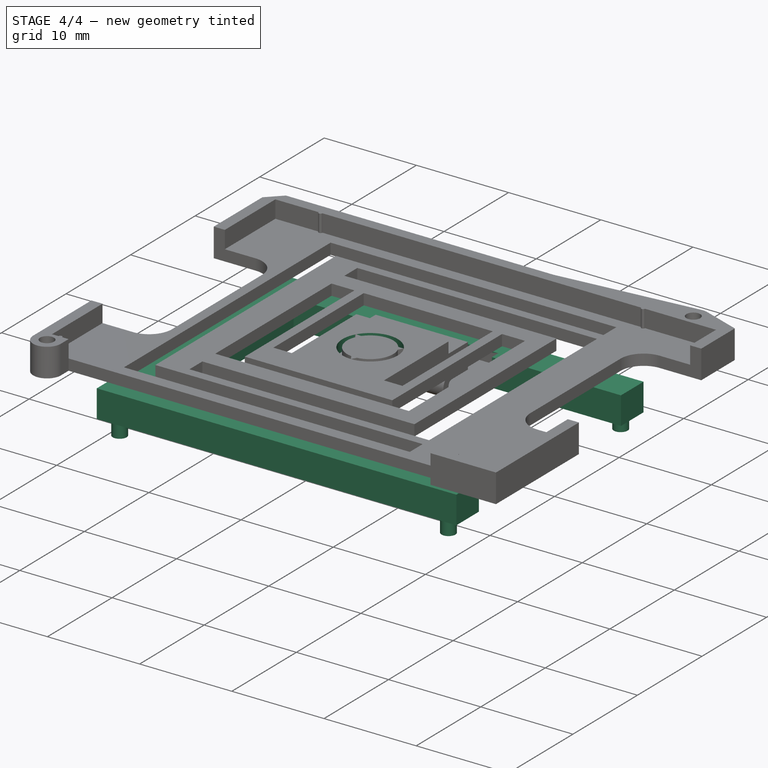
[diagram: stage 4 of 4 — iso view after this stage's code; geometry added in this stage tinted green]
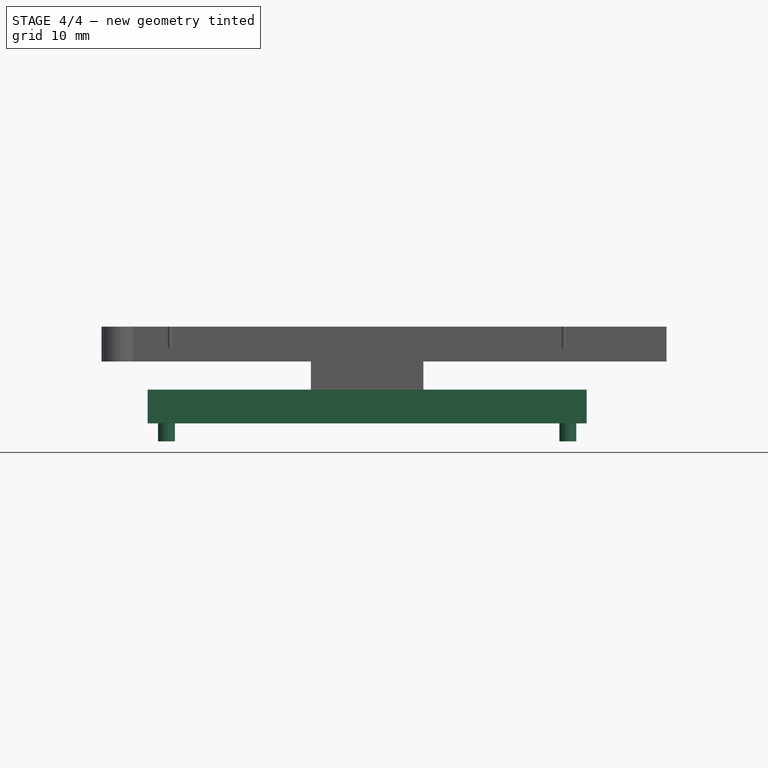
[diagram: stage 4 of 4 — front view after this stage's code; geometry added in this stage tinted green]
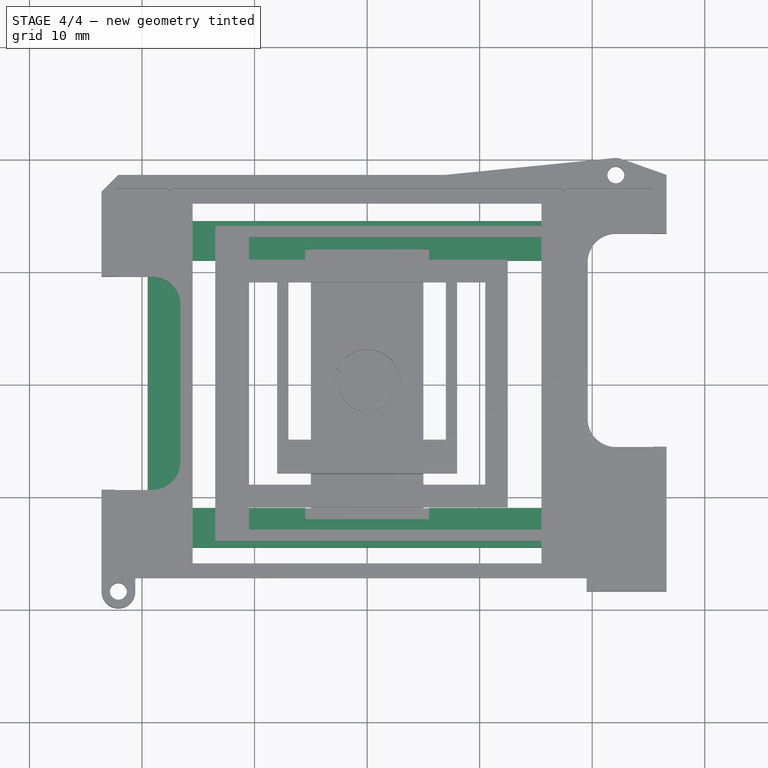
[diagram: stage 4 of 4 — top view after this stage's code; geometry added in this stage tinted green]
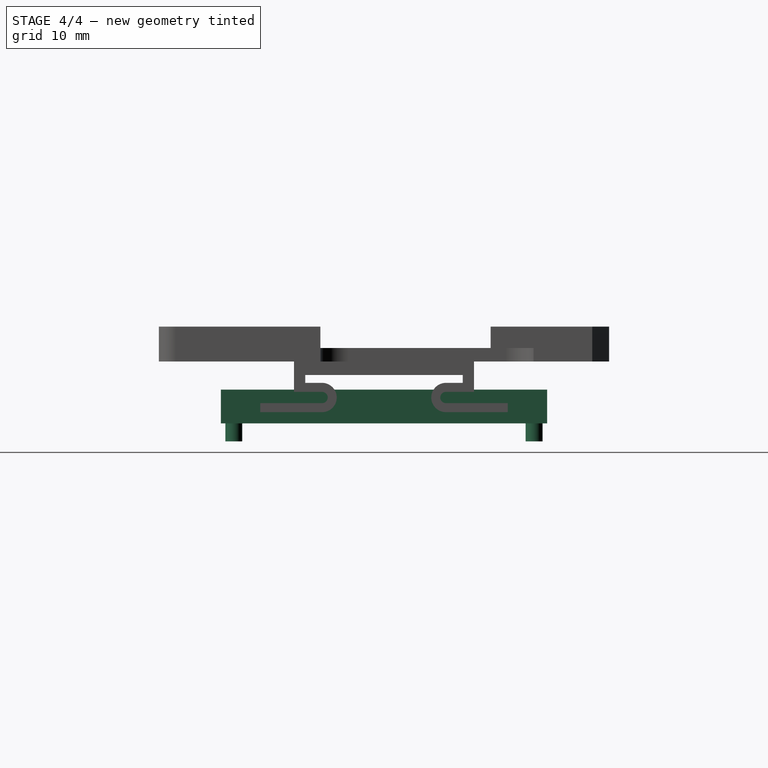
[diagram: stage 4 of 4 — right view after this stage's code; geometry added in this stage tinted green]
FEATURE [PartDesign::Plane] DatumPlane004
  AttachmentOffset = pos=(0,0,5.5) rot=(0,0,1;0rad)
  Length = 60
  MapMode = 5
  Placement = pos=(0,0,5.5) rot=(0,0,1;0rad)
  ResizeMode = 0
  Support = -> [XY_Plane003]
  Width = 60
FEATURE [Sketcher::SketchObject] Sketch024
  FullyConstrained = true
  MapMode = 5
  Support = -> [XY_Plane003]
  sketch-geometry (4):
    g0: Circle CenterX=-17.5 CenterY=13.34 CenterZ=0 NormalX=0 NormalY=0 NormalZ=1 AngleXU=0 Radius=1
    g1: Circle CenterX=-17.5 CenterY=-13.34 CenterZ=0 NormalX=0 NormalY=0 NormalZ=1 AngleXU=0 Radius=1
    g2: Circle CenterX=17.5 CenterY=13.34 CenterZ=0 NormalX=0 NormalY=0 NormalZ=1 AngleXU=0 Radius=1
    g3: Circle CenterX=17.5 CenterY=-13.34 CenterZ=0 NormalX=0 NormalY=0 NormalZ=1 AngleXU=0 Radius=1
  constraints (10):
    c: Vertical(g2,g3)
    c: Horizontal(g3,g1)
    c: Symmetric(g2,g0,g-2)
    c: Symmetric(g0,g1,g-1)
    c: Equal(g0,g2)
    c: Equal(g2,g3)
    c: Equal(g3,g1)
    c: Diameter(g0) = 2
    c: DistanceX(g0,g2) = 35
    c: DistanceY(g1,g0) = 26.68
FEATURE [Sketcher::SketchObject] Sketch025
  FullyConstrained = true
  MapMode = 5
  Placement = pos=(0,0,0) rot=(0.57735,0.57735,0.57735;2.0944rad)
  Support = -> [YZ_Plane003]
  sketch-geometry (19):
    g0: LineSegment StartX=0 StartY=6 StartZ=0 EndX=-8 EndY=6 EndZ=0
    g1: LineSegment StartX=-8 StartY=6 StartZ=0 EndX=-8 EndY=4.8 EndZ=0
    g2: LineSegment StartX=-8 StartY=4.8 StartZ=0 EndX=-7 EndY=4.8 EndZ=0
    g3: LineSegment StartX=0 StartY=4.8 StartZ=0 EndX=0 EndY=6 EndZ=0
    g4: ArcOfCircle CenterX=-7.75 CenterY=2.5 CenterZ=0 NormalX=0 NormalY=0 NormalZ=1 AngleXU=0 Radius=0.75 StartAngle=3.14159 EndAngle=6.28319
    g5: LineSegment StartX=-7 StartY=2.5 StartZ=0 EndX=-7 EndY=4.8 EndZ=0
    g6: ArcOfCircle CenterX=-7.75 CenterY=2.5 CenterZ=0 NormalX=0 NormalY=0 NormalZ=1 AngleXU=0 Radius=1.25 StartAngle=3.14159 EndAngle=6.28319
    g7: LineSegment StartX=-6.5 StartY=2.5 StartZ=0 EndX=-6.5 EndY=4.8 EndZ=0
    g8: LineSegment StartX=-15 StartY=0 StartZ=0 EndX=-10 EndY=0 EndZ=0
    g9: LineSegment StartX=-10 StartY=0 StartZ=0 EndX=-10 EndY=2.8 EndZ=0
    g10: LineSegment StartX=-15 StartY=4 StartZ=0 EndX=-15 EndY=0 EndZ=0
    g11: LineSegment StartX=-8.5 StartY=4 StartZ=0 EndX=-8.5 EndY=2.5 EndZ=0
    g12: LineSegment StartX=-10 StartY=2.8 StartZ=0 EndX=-9 EndY=2.8 EndZ=0
    g13: LineSegment StartX=-9 StartY=2.8 StartZ=0 EndX=-9 EndY=2.5 EndZ=0
    g14: GeomPoint X=-12.5 Y=0 Z=0
    g15: LineSegment StartX=-6.5 StartY=4.8 StartZ=0 EndX=0 EndY=4.8 EndZ=0
    g16: LineSegment StartX=-15 StartY=4 StartZ=0 EndX=-10 EndY=4 EndZ=0
    g17: LineSegment StartX=-10 StartY=2.8 StartZ=0 EndX=-10 EndY=4 EndZ=0
    g18: LineSegment StartX=-10 StartY=4 StartZ=0 EndX=-8.5 EndY=4 EndZ=0
  constraints (51):
    c: Coincident(g0,g1)
    c: Coincident(g1,g2)
    c: Coincident(g15,g3)
    c: Coincident(g3,g0)
    c: Horizontal(g0)
    c: Horizontal(g2)
    c: Vertical(g1)
    c: Vertical(g3)
    c: PointOnObject(g0,g-2)
    c: Vertical(g5)
    c: Coincident(g6,g4)
    c: Vertical(g7)
    c: Coincident(g8,g9)
    c: Coincident(g10,g8)
    c: Horizontal(g8)
    c: Vertical(g9)
    c: Vertical(g10)
    c: PointOnObject(g8,g-1)
    c: Horizontal(g12)
    c: Coincident(g13,g12)
    c: Vertical(g11)
    c: Vertical(g13)
    c: Symmetric(g8,g8,g14)
    c: DistanceX(g14,g-1) = 12.5
    c: DistanceY(g-1,g0) = 6
    c: DistanceY(g1,g1) = 1.2
    c: Tangent(g4,g5) = -1.5708
    c: Tangent(g6,g7) = -1.5708
    c: Tangent(g6,g13) = -1.5708
    c: Tangent(g4,g11) = -1.5708
    c: Coincident(g9,g12)
    c: Coincident(g2,g5)
    c: Coincident(g15,g7)
    c: Coincident(g16,g10)
    c: Horizontal(g16)
    c: DistanceY(g12,g11) = 1.2
    c: Diameter(g6) = 2.5
    c: Diameter(g4) = 1.5
    c: DistanceX(g0,g0) = 8
    c: DistanceY(g10,g10) = 4
    c: DistanceX(g12,g12) = 1
    c: DistanceX(g8,g8) = 5
    c: DistanceY(g11,g11) = 1.5
    c: Horizontal(g15)
    c: Horizontal(g7,g2)
    c: Coincident(g17,g9)
    c: Vertical(g17)
    c: Coincident(g16,g17)
    c: Coincident(g18,g16)
    c: Coincident(g18,g11)
    c: Horizontal(g18)
FEATURE [Sketcher::SketchObject] Sketch026
  FullyConstrained = true
  MapMode = 5
  Placement = pos=(0,0,5.5) rot=(0,0,1;0rad)
  Support = -> [DatumPlane004]
  sketch-geometry (13):
    g0: Circle CenterX=0 CenterY=0 CenterZ=0 NormalX=0 NormalY=0 NormalZ=1 AngleXU=0 Radius=3
    g1: LineSegment StartX=0 StartY=0 StartZ=0 EndX=2.59808 EndY=1.5 EndZ=0
    g2: LineSegment StartX=0 StartY=0 StartZ=0 EndX=-2.59808 EndY=1.5 EndZ=0
    g3: LineSegment StartX=0 StartY=0 StartZ=0 EndX=0 EndY=-3 EndZ=0
    g4: ArcOfCircle CenterX=0 CenterY=0 CenterZ=0 NormalX=0 NormalY=0 NormalZ=1 AngleXU=0 Radius=2.5 StartAngle=2.7379 EndAngle=4.59249
    g5: LineSegment StartX=-2.59808 StartY=1.5 StartZ=0 EndX=-2.29904 EndY=0.982051 EndZ=0
    g6: LineSegment StartX=-2.59808 StartY=1.5 StartZ=0 EndX=-2 EndY=1.5 EndZ=0
    g7: LineSegment StartX=2.59808 StartY=1.5 StartZ=0 EndX=2.29904 EndY=0.982051 EndZ=0
    g8: LineSegment StartX=2.59808 StartY=1.5 StartZ=0 EndX=2 EndY=1.5 EndZ=0
    g9: LineSegment StartX=0 StartY=-3 StartZ=0 EndX=0.299038 EndY=-2.48205 EndZ=0
    g10: LineSegment StartX=0 StartY=-3 StartZ=0 EndX=-0.299038 EndY=-2.48205 EndZ=0
    g11: ArcOfCircle CenterX=0 CenterY=0 CenterZ=0 NormalX=0 NormalY=0 NormalZ=1 AngleXU=0 Radius=2.5 StartAngle=0.643501 EndAngle=2.49809
    g12: ArcOfCircle CenterX=0 CenterY=0 CenterZ=0 NormalX=0 NormalY=0 NormalZ=1 AngleXU=0 Radius=2.5 StartAngle=4.83229 EndAngle=6.68688
  constraints (35):
    c: Diameter(g0) = 6
    c: Coincident(g1,g0)
    c: PointOnObject(g1,g0)
    c: Coincident(g2,g1)
    c: Coincident(g3,g1)
    c: PointOnObject(g3,g0)
    c: Vertical(g3)
    c: Coincident(g1,g-1)
    c: Coincident(g4,g1)
    c: Diameter(g4) = 5
    c: Symmetric(g1,g2,g-2)
    c: Coincident(g5,g2)
    c: Coincident(g6,g5)
    c: Coincident(g7,g1)
    c: Coincident(g8,g7)
    c: PointOnObject(g8,g4)
    c: Coincident(g9,g3)
    c: Equal(g6,g5)
    c: Equal(g5,g8)
    c: Equal(g8,g7)
    c: Equal(g7,g9)
    c: Equal(g9,g10)
    c: Coincident(g3,g10)
    c: Angle(g5,g6) = 1.0472
    c: Angle(g1,g2) = 2.0944
    c: Coincident(g11,g6)
    c: Coincident(g4,g5)
    c: Equal(g4,g11)
    c: Coincident(g12,g7)
    c: Coincident(g4,g11)
    c: PointOnObject(g11,g8)
    c: Equal(g4,g12)
    c: Coincident(g4,g10)
    c: Coincident(g12,g9)
    c: Coincident(g4,g12)
FEATURE [Sketcher::SketchObject] Sketch027
  FullyConstrained = false
  MapMode = 5
  Placement = pos=(0,0,0) rot=(0.57735,0.57735,0.57735;2.0944rad)
  Support = -> [YZ_Plane003]
  sketch-geometry (37):
    g0: LineSegment StartX=0 StartY=5.5 StartZ=0 EndX=-8 EndY=5.5 EndZ=0
    g1: LineSegment StartX=-8 StartY=5.5 StartZ=0 EndX=-8 EndY=4.3 EndZ=0
    g2: LineSegment StartX=-8 StartY=4.3 StartZ=0 EndX=-7 EndY=4.3 EndZ=0
    g3: LineSegment StartX=0 StartY=4.3 StartZ=0 EndX=0 EndY=5.5 EndZ=0
    g4: ArcOfCircle CenterX=-7.5 CenterY=1.3 CenterZ=0 NormalX=0 NormalY=0 NormalZ=1 AngleXU=0 Radius=0.5 StartAngle=3.14159 EndAngle=6.28319
    g5: LineSegment StartX=-7 StartY=1.3 StartZ=0 EndX=-7 EndY=4.3 EndZ=0
    g6: ArcOfCircle CenterX=-7.5 CenterY=1.3 CenterZ=0 NormalX=0 NormalY=0 NormalZ=1 AngleXU=0 Radius=1.5 StartAngle=3.14159 EndAngle=6.28319
    g7: LineSegment StartX=-6 StartY=1.3 StartZ=0 EndX=-6 EndY=4.3 EndZ=0
    g8: LineSegment StartX=-15 StartY=0 StartZ=0 EndX=-10 EndY=0 EndZ=0
    g9: LineSegment StartX=-10 StartY=0 StartZ=0 EndX=-10 EndY=1.6 EndZ=0
    g10: LineSegment StartX=-15 StartY=2.8 StartZ=0 EndX=-15 EndY=0 EndZ=0
    g11: LineSegment StartX=-8 StartY=2.8 StartZ=0 EndX=-8 EndY=1.3 EndZ=0
    g12: LineSegment StartX=-10 StartY=1.6 StartZ=0 EndX=-9 EndY=1.6 EndZ=0
    g13: LineSegment StartX=-9 StartY=1.6 StartZ=0 EndX=-9 EndY=1.3 EndZ=0
    g14: GeomPoint X=-12.5 Y=0 Z=0
    g15: LineSegment StartX=-5.65359 StartY=4.3 StartZ=0 EndX=0 EndY=4.3 EndZ=0
    g16: LineSegment StartX=-15 StartY=2.8 StartZ=0 EndX=-10 EndY=2.8 EndZ=0
    g17: LineSegment StartX=-10 StartY=1.6 StartZ=0 EndX=-10 EndY=2.8 EndZ=0
    g18: LineSegment StartX=-10 StartY=2.8 StartZ=0 EndX=-8 EndY=2.8 EndZ=0
    g19: LineSegment StartX=-8 StartY=2.8 StartZ=0 EndX=-7.43301 EndY=1.81795 EndZ=0
    g20: LineSegment StartX=-7.43301 StartY=1.81795 StartZ=0 EndX=-6 EndY=4.3 EndZ=0
    g21: LineSegment StartX=-7 StartY=4.3 StartZ=0 EndX=-6 EndY=4.3 EndZ=0
    g22: LineSegment StartX=-8 StartY=2.2 StartZ=0 EndX=-7.43301 EndY=1.21795 EndZ=0
    g23: LineSegment StartX=-7.43301 StartY=1.21795 StartZ=0 EndX=-5.65359 EndY=4.3 EndZ=0
    g24: LineSegment StartX=-10 StartY=1.6 StartZ=0 EndX=-8 EndY=2.2 EndZ=0
    g25: LineSegment StartX=-7.98668 StartY=2.77692 StartZ=0 EndX=-8.24649 EndY=2.62692 EndZ=0
    g26: LineSegment StartX=-6.62813 StartY=3.21206 StartZ=0 EndX=-6.36832 EndY=3.06206 EndZ=0
    g27: LineSegment StartX=-5.65359 StartY=4.3 StartZ=0 EndX=-6 EndY=4.3 EndZ=0
    g28: ArcOfCircle CenterX=-4 CenterY=3.2 CenterZ=0 NormalX=0 NormalY=0 NormalZ=1 AngleXU=0 Radius=0.4 StartAngle=4.71239 EndAngle=7.85398
    g29: LineSegment StartX=-10 StartY=2.8 StartZ=0 EndX=-4 EndY=2.8 EndZ=0
    g30: LineSegment StartX=-4 StartY=3.6 StartZ=0 EndX=-7 EndY=3.6 EndZ=0
    g31: LineSegment StartX=-7 StartY=3.6 StartZ=0 EndX=-7 EndY=4.3 EndZ=0
    g32: LineSegment StartX=-4 StartY=4.1 StartZ=0 EndX=-6 EndY=4.1 EndZ=0
    g33: LineSegment StartX=-6 StartY=4.1 StartZ=0 EndX=-6 EndY=4.3 EndZ=0
    g34: ArcOfCircle CenterX=-4 CenterY=3.2 CenterZ=0 NormalX=0 NormalY=0 NormalZ=1 AngleXU=0 Radius=0.9 StartAngle=4.71239 EndAngle=7.85398
    g35: LineSegment StartX=-10 StartY=0 StartZ=0 EndX=-7 EndY=2.3 EndZ=0
    g36: LineSegment StartX=-7 StartY=2.3 StartZ=0 EndX=-4 EndY=2.3 EndZ=0
  constraints (98):
    c: Coincident(g0,g1)
    c: Coincident(g1,g2)
    c: Coincident(g15,g3)
    c: Coincident(g3,g0)
    c: Horizontal(g0)
    c: Horizontal(g2)
    c: Vertical(g1)
    c: Vertical(g3)
    c: PointOnObject(g0,g-2)
    c: Vertical(g5)
    c: Coincident(g6,g4)
    c: Vertical(g7)
    c: Coincident(g8,g9)
    c: Coincident(g10,g8)
    c: Horizontal(g8)
    c: Vertical(g9)
    c: Vertical(g10)
    c: PointOnObject(g8,g-1)
    c: Horizontal(g12)
    c: Coincident(g13,g12)
    c: Vertical(g11)
    c: Vertical(g13)
    c: Symmetric(g8,g8,g14)
    c: DistanceX(g14,g-1) = 12.5
    c: DistanceY(g-1,g0) = 5.5
    c: DistanceY(g1,g1) = 1.2
    c: Tangent(g4,g5) = -1.5708
    c: Tangent(g6,g7) = -1.5708
    c: Tangent(g6,g13) = -1.5708
    c: Tangent(g4,g11) = -1.5708
    c: Coincident(g9,g12)
    c: Coincident(g2,g5)
    c: Coincident(g16,g10)
    c: Horizontal(g16)
    c: DistanceY(g12,g11) = 1.2
    c: Diameter(g6) = 3
    c: Diameter(g4) = 1
    c: DistanceX(g0,g0) = 8
    c: DistanceY(g10,g10) = 2.8
    c: DistanceX(g12,g12) = 1
    c: DistanceX(g8,g8) = 5
    c: DistanceY(g11,g11) = 1.5
    c: Horizontal(g15)
    c: Horizontal(g7,g2)
    c: Coincident(g17,g9)
    c: Vertical(g17)
    c: Coincident(g16,g17)
    c: Coincident(g18,g16)
    c: Coincident(g18,g11)
    c: Horizontal(g18)
    c: Coincident(g19,g18)
    c: Coincident(g20,g19)
    c: Coincident(g20,g7)
    c: Coincident(g21,g2)
    c: Coincident(g21,g7)
    c: PointOnObject(g22,g11)
    c: Coincident(g23,g22)
    c: Coincident(g15,g23)
    c: Horizontal(g15,g20)
    c: Parallel(g20,g23)
    c: Parallel(g19,g22)
    c: Coincident(g24,g17)
    c: Coincident(g24,g22)
    c: PointOnObject(g25,g19)
    c: PointOnObject(g25,g22)
    c: PointOnObject(g26,g20)
    c: PointOnObject(g26,g23)
    c: Perpendicular(g20,g26)
    c: Perpendicular(g19,g25)
    c: Equal(g26,g25)
    c: Distance(g26) = 0.3
    c: Angle(g18,g19) = 2.0944
    c: Angle(g23,g15) = 2.0944
    c: Coincident(g27,g15)
    c: Coincident(g27,g7)
    c: Coincident(g29,g16)
    c: Horizontal(g29)
    c: PointOnObject(g30,g5)
    c: Horizontal(g30)
    c: Coincident(g31,g30)
    c: Coincident(g31,g2)
    c: PointOnObject(g32,g7)
    c: Horizontal(g32)
    c: Coincident(g33,g32)
    c: Coincident(g33,g27)
    c: Tangent(g28,g29) = -1.5708
    c: Tangent(g28,g30) = -1.5708
    c: Tangent(g32,g34) = -1.5708
    c: Diameter(g28) = 0.8
    c: Diameter(g34) = 1.8
    c: Coincident(g34,g28)
    c: Coincident(g35,g8)
    c: Horizontal(g36)
    c: Coincident(g35,g36)
    c: Tangent(g34,g36) = -1.5708
    c: DistanceX(g30,g30) = 3
    c: DistanceX(g36,g36) = 3
    c: DistanceY(g-1,g3) = 4.3
FEATURE [Sketcher::SketchObject] Sketch028
  FullyConstrained = false
  MapMode = 5
  Support = -> [XY_Plane003]
  sketch-geometry (4):
    g0: LineSegment StartX=16.5 StartY=16.3941 StartZ=0 EndX=29.4445 EndY=16.3941 EndZ=0
    g1: LineSegment StartX=29.4445 StartY=16.3941 StartZ=0 EndX=29.4445 EndY=2.67368 EndZ=0
    g2: LineSegment StartX=29.4445 StartY=2.67368 StartZ=0 EndX=16.5 EndY=2.67368 EndZ=0
    g3: LineSegment StartX=16.5 StartY=2.67368 StartZ=0 EndX=16.5 EndY=16.3941 EndZ=0
  constraints (9):
    c: Coincident(g0,g1)
    c: Coincident(g1,g2)
    c: Coincident(g2,g3)
    c: Coincident(g3,g0)
    c: Horizontal(g0)
    c: Horizontal(g2)
    c: Vertical(g1)
    c: Vertical(g3)
    c: DistanceX(g-1,g2) = 16.5
FEATURE [Sketcher::SketchObject] Sketch029
  FullyConstrained = true
  MapMode = 5
  Support = -> [XY_Plane002]
  sketch-geometry (18):
    g0: LineSegment StartX=-19.5 StartY=-14.5 StartZ=0 EndX=-19.5 EndY=14.5 EndZ=0
    g1: LineSegment StartX=-19.5 StartY=14.5 StartZ=0 EndX=19.5 EndY=14.5 EndZ=0
    g2: LineSegment StartX=19.5 StartY=-11 StartZ=0 EndX=19.5 EndY=-14.5 EndZ=0
    g3: LineSegment StartX=19.5 StartY=-14.5 StartZ=0 EndX=-19.5 EndY=-14.5 EndZ=0
    g4: GeomPoint X=0 Y=0 Z=0
    g5: LineSegment StartX=-16 StartY=-11 StartZ=0 EndX=-16 EndY=11 EndZ=0
    g6: LineSegment StartX=-16 StartY=11 StartZ=0 EndX=19.5 EndY=11 EndZ=0
    g7: GeomPoint X=0 Y=0 Z=0
    g8: Circle CenterX=-17.5 CenterY=12.5 CenterZ=0 NormalX=0 NormalY=0 NormalZ=1 AngleXU=0 Radius=1
    g9: Circle CenterX=-17.5 CenterY=-12.5 CenterZ=0 NormalX=0 NormalY=0 NormalZ=1 AngleXU=0 Radius=1
    g10: Circle CenterX=17.5 CenterY=-12.5 CenterZ=0 NormalX=0 NormalY=0 NormalZ=1 AngleXU=0 Radius=1
    g11: LineSegment StartX=19.5 StartY=14.5 StartZ=0 EndX=19.5 EndY=11 EndZ=0
    g12: LineSegment StartX=-16 StartY=-11 StartZ=0 EndX=19.5 EndY=-11 EndZ=0
    g13: LineSegment StartX=-17.5 StartY=-12.5 StartZ=0 EndX=-16 EndY=-11 EndZ=0
    g14: LineSegment StartX=-17.5 StartY=-12.5 StartZ=0 EndX=-19.5 EndY=-14.5 EndZ=0
    g15: LineSegment StartX=-16 StartY=11 StartZ=0 EndX=-17.5 EndY=12.5 EndZ=0
    g16: LineSegment StartX=-17.5 StartY=12.5 StartZ=0 EndX=-19.5 EndY=14.5 EndZ=0
    g17: LineSegment StartX=17.5 StartY=-12.5 StartZ=0 EndX=19.5 EndY=-14.5 EndZ=0
  constraints (43):
    c: Coincident(g0,g1)
    c: Coincident(g2,g3)
    c: Coincident(g3,g0)
    c: Horizontal(g1)
    c: Horizontal(g3)
    c: Vertical(g0)
    c: Vertical(g2)
    c: Coincident(g4,g-1)
    c: Coincident(g5,g6)
    c: Horizontal(g6)
    c: Vertical(g5)
    c: Coincident(g7,g4)
    c: Equal(g8,g9)
    c: Equal(g9,g10)
    c: Diameter(g8) = 2
    c: Symmetric(g8,g9,g-1)
    c: Symmetric(g10,g9,g-2)
    c: DistanceY(g9,g8) = 25
    c: DistanceX(g9,g10) = 35
    c: Vertical(g11)
    c: Coincident(g6,g11)
    c: Coincident(g1,g11)
    c: Equal(g11,g2)
    c: Coincident(g12,g5)
    c: Coincident(g12,g2)
    c: Horizontal(g12)
    c: Coincident(g13,g9)
    c: Coincident(g13,g5)
    c: Coincident(g14,g9)
    c: Coincident(g14,g0)
    c: Coincident(g15,g5)
    c: Coincident(g15,g8)
    c: Coincident(g16,g8)
    c: Coincident(g16,g0)
    c: Coincident(g17,g10)
    c: Coincident(g17,g2)
    c: DistanceX(g9,g5) = 1.5
    c: DistanceY(g0,g9) = 2
    c: DistanceX(g0,g9) = 2
    c: DistanceY(g9,g5) = 1.5
    c: Equal(g13,g15)
    c: Equal(g17,g14)
    c: Vertical(g6,g2)
FEATURE [PartDesign::Pad] Pad019
  Direction = (0,0,1)
  Length = 3
  Length2 = 10
  Profile = -> Sketch029
  ReferenceAxis = -> Sketch029 [N_Axis]
  Type = 0
FEATURE [PartDesign::Pad] Pad020
  BaseFeature = -> Pad019
  Direction = (0,0,1)
  Length = 1.6
  Length2 = 10
  Profile = -> Sketch
  ReferenceAxis = -> Sketch [N_Axis]
  Reversed = true
  Type = 0
FEATURE [PartDesign::Pocket] Pocket003
  BaseFeature = -> Pad020
  Direction = (-1,2e-16,-3e-16)
  Length = 11
  Length2 = 5
  Midplane = true
  Profile = -> Sketch030
  ReferenceAxis = -> Sketch030 [N_Axis]
  Type = 0
FEATURE [PartDesign::Body] Body002  label="PLASTIC-TEK1-DISPLAY-INTERFACE_bottom_part001"
  Group = -> [Sketch029,Pad019,Pad020,Sketch,Sketch021,DatumPlane005,Sketch030,Pocket003]
  Origin = -> Origin002
  Tip = -> Pocket003
FEATURE [Sketcher::SketchObject] Sketch034
  FullyConstrained = true
  MapMode = 5
  Placement = pos=(0,0,5.5) rot=(0,0,1;0rad)
  Support = -> [DatumPlane002]
  sketch-geometry (1):
    g0: Circle CenterX=0 CenterY=0 CenterZ=0 NormalX=0 NormalY=0 NormalZ=1 AngleXU=0 Radius=3
  constraints (2):
    c: Coincident(g0,g-1)
    c: Diameter(g0) = 6
FEATURE [PartDesign::Pocket] Pocket006
  BaseFeature = -> Pocket
  Direction = (0,0,-1)
  Length = 5
  Length2 = 5
  Placement = pos=(0,0,5.5) rot=(0,0,1;0rad)
  Profile = -> Sketch034
  ReferenceAxis = -> Sketch034 [N_Axis]
  Reversed = true
  Type = 0
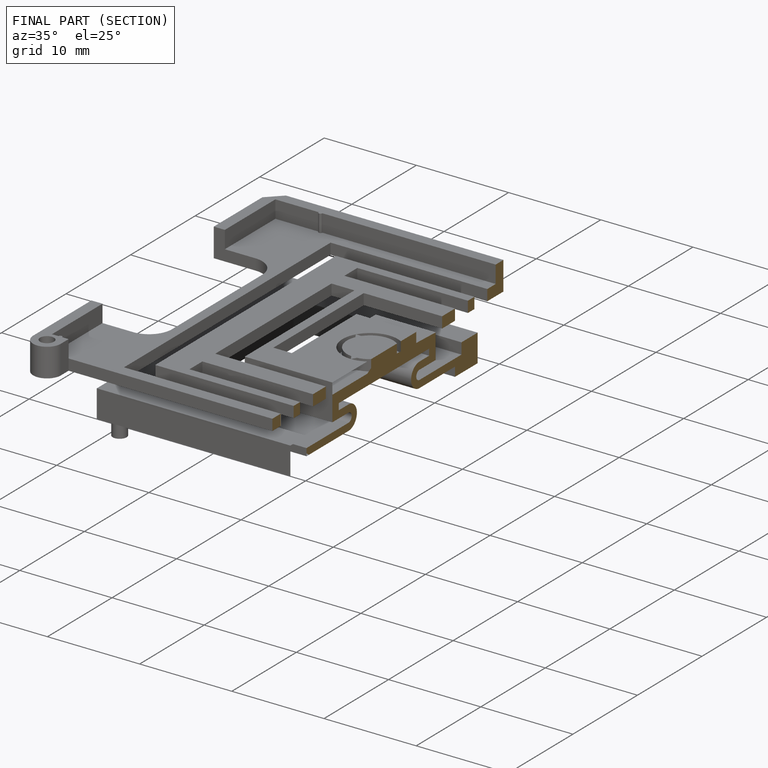
[diagram: finished part — half-section view (interior)]
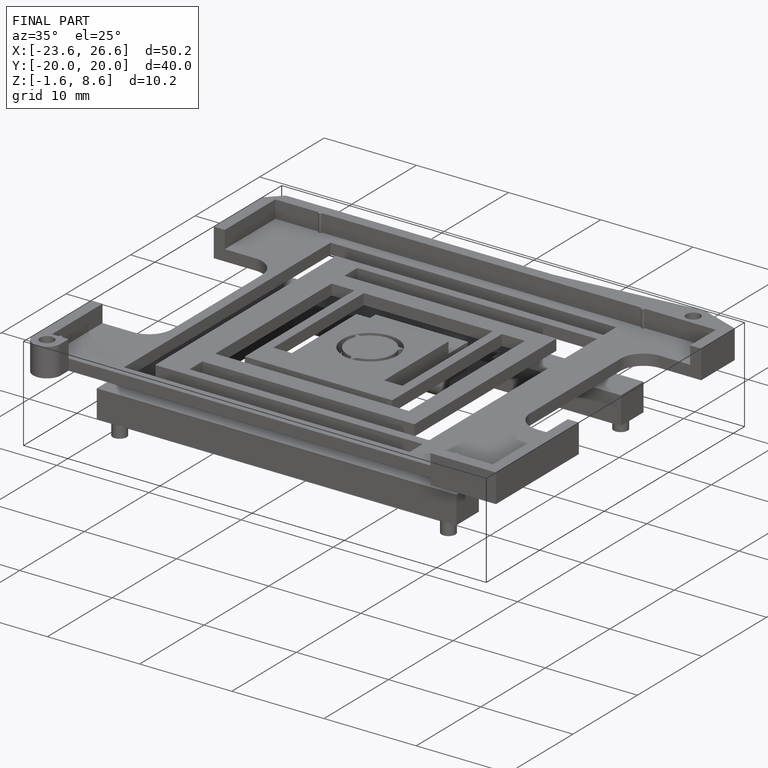
[diagram: finished part — iso view with bounding-box wireframe]
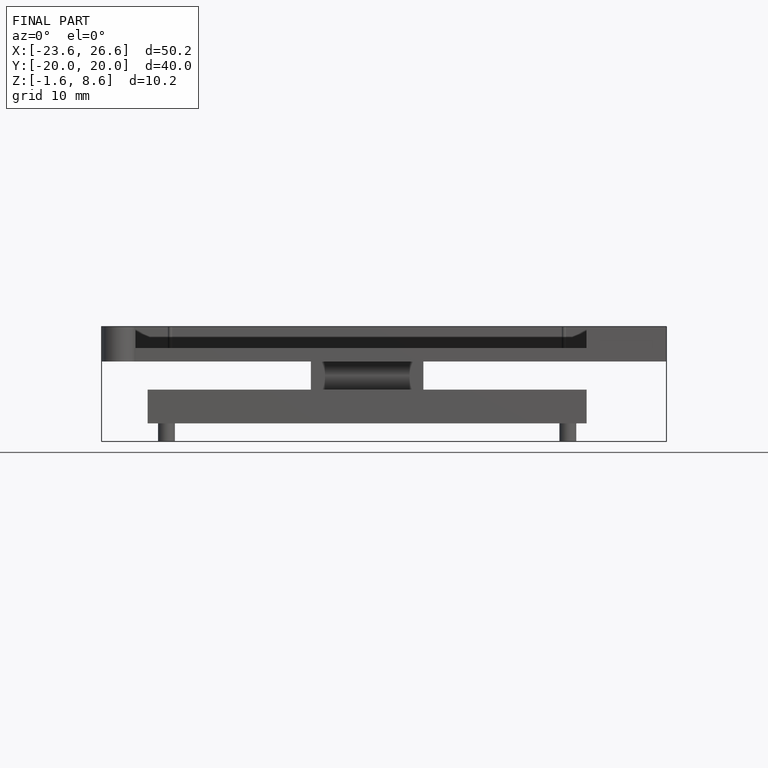
[diagram: finished part — front view with bounding-box wireframe]
